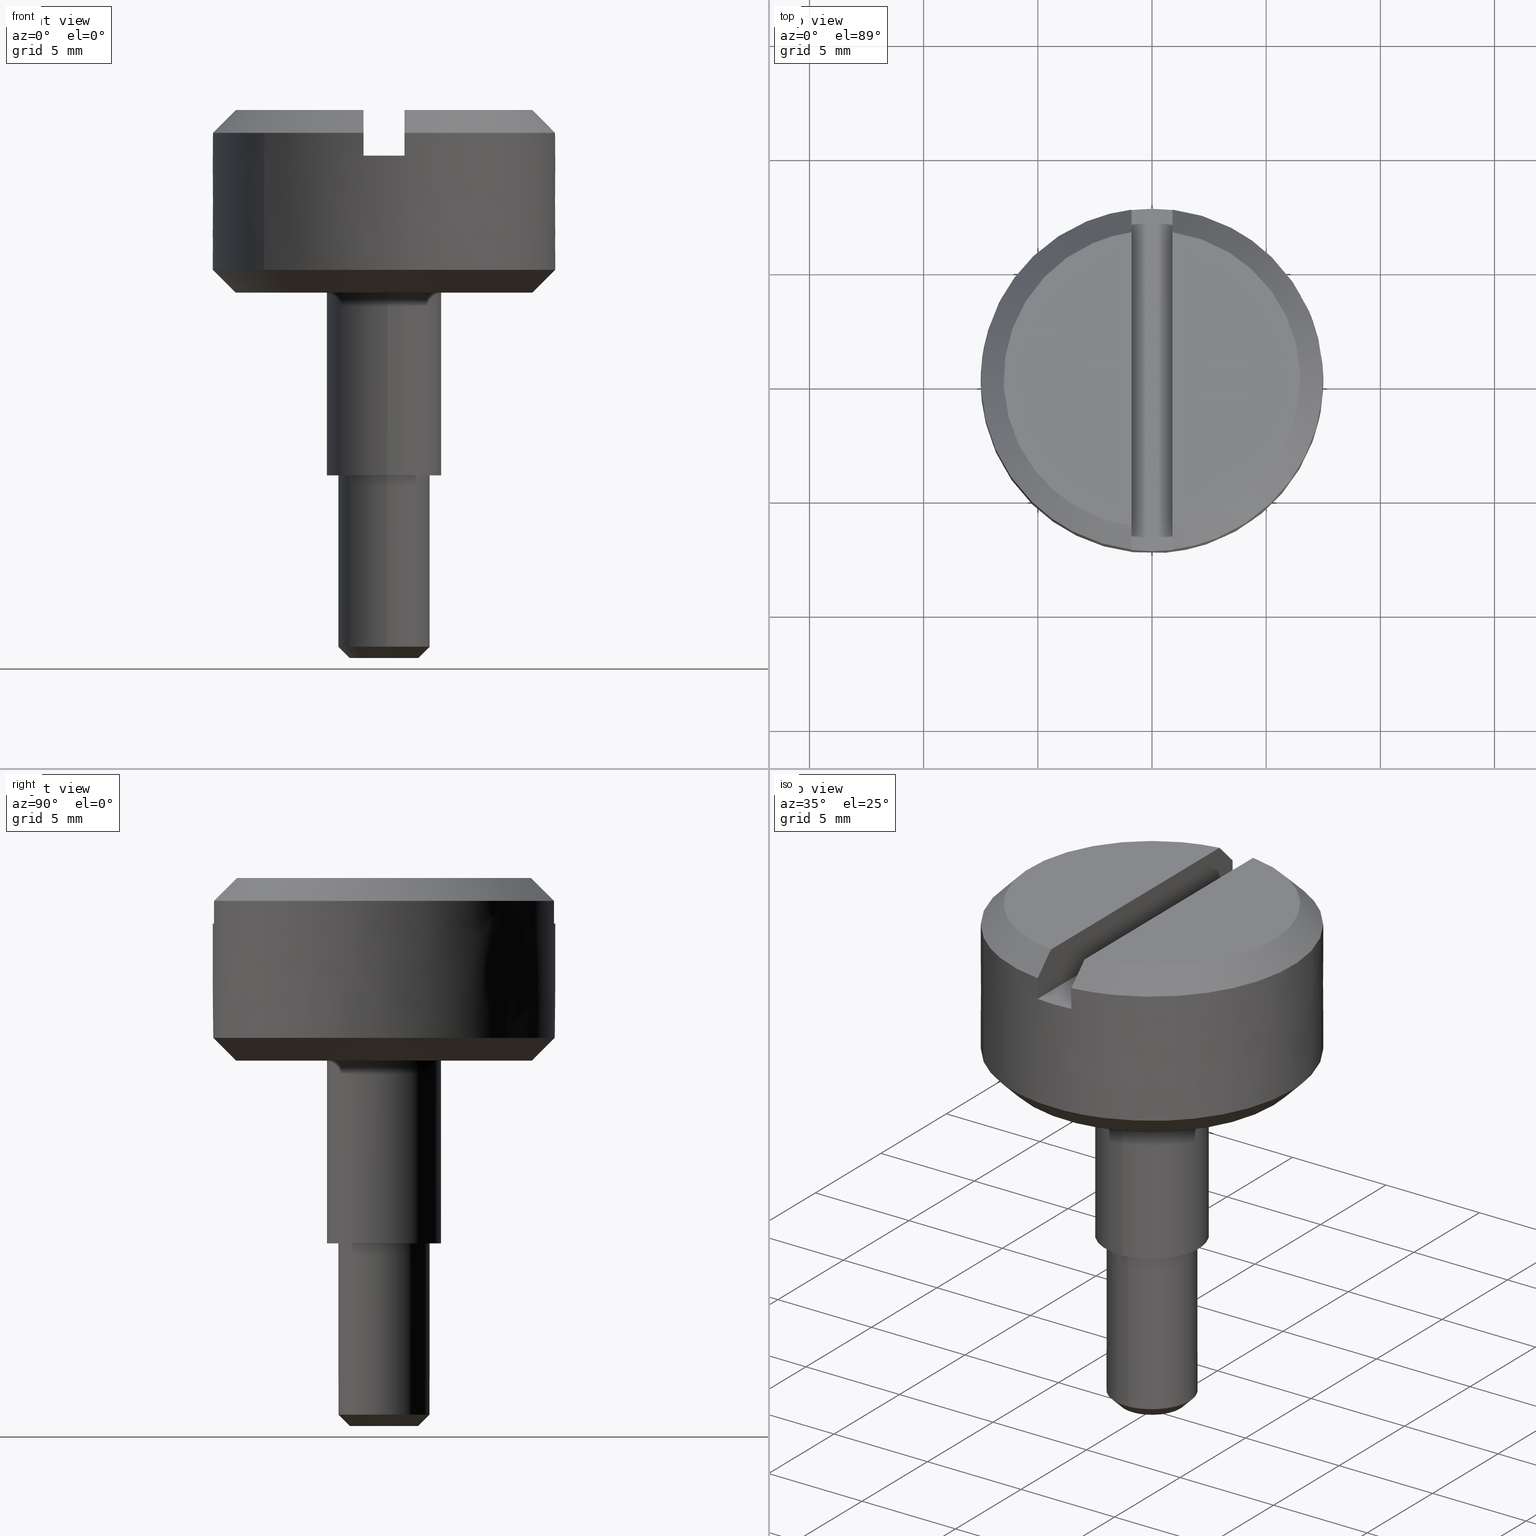
[diagram: canonical four-view strip — front | top / right | iso, engineering-drawing reading convention]
A machine part, canonical four-view strip (front | top / right | iso — engineering-drawing reading convention). The complete STEP part file that produces these views, byte-faithful:
ISO-10303-21;
HEADER;
/****************************************************************
 * Generated by software with PDE/Lib inside                    *
 * PDElib Version v5.1, created Sun 05/01/2005                  *
 * International Technegroup Inc. (www.iti-oh.com)              *
 ****************************************************************/
FILE_DESCRIPTION((''),'2;1');
FILE_NAME('','2009-09-16T09:00:57',(''),(''),'','CADfix','');
FILE_SCHEMA(('AUTOMOTIVE_DESIGN { 1 0 10303 214 1 1 1 1 }'));
ENDSEC;
DATA;
#5=CARTESIAN_POINT('',(1.649849994185451,-1.649392157252150,-16.0));
#6=CARTESIAN_POINT('',(-1.649850074651764,-1.649392157252150,-16.0));
#7=CARTESIAN_POINT('',(1.649849994185451,1.649392210896330,-16.0));
#8=CARTESIAN_POINT('',(-1.649850074651765,1.649392210896330,-16.0));
#9=B_SPLINE_SURFACE_WITH_KNOTS('',1,1,((#5,#7),(#6,#8)),.UNSPECIFIED.,.F.,.F.,.U.,(2,2),(2,2),(0.0,3.299700068837216),(0.0,3.298784368148479),.UNSPECIFIED.);
#10=CARTESIAN_POINT('',(-1.500000000000071,0.0,-16.0));
#11=VERTEX_POINT('',#10);
#12=CARTESIAN_POINT('',(-0.117688643725480,1.495376000606664,-15.999999999982609));
#13=VERTEX_POINT('',#12);
#14=CARTESIAN_POINT('',(-1.500000000000071,0.0,-16.0));
#15=CARTESIAN_POINT('',(-1.500000000000754,1.386585737372950,-15.999999999991308));
#16=CARTESIAN_POINT('',(-0.117688643725480,1.495376000606665,-15.999999999982613));
#24=(BOUNDED_CURVE()B_SPLINE_CURVE(2,(#14,#15,#16),.UNSPECIFIED.,.F.,.U.)B_SPLINE_CURVE_WITH_KNOTS((3,3),(0.0,0.236331300617598),.UNSPECIFIED.)CURVE()GEOMETRIC_REPRESENTATION_ITEM()RATIONAL_B_SPLINE_CURVE((1.0,0.723120658622968,0.969723356140159))REPRESENTATION_ITEM(''));
#25=EDGE_CURVE('',#11,#13,#24,.T.);
#26=ORIENTED_EDGE('',*,*,#25,.T.);
#27=CARTESIAN_POINT('',(1.500000000000029,0.0,-16.0));
#28=VERTEX_POINT('',#27);
#29=CARTESIAN_POINT('',(-0.117688643725480,1.495376000606665,-15.999999999982613));
#30=CARTESIAN_POINT('',(-0.058935160579336,1.500000000017072,-15.999999999982931));
#31=CARTESIAN_POINT('',(-1.334117E-012,1.500000000016731,-15.999999999983270));
#32=CARTESIAN_POINT('',(1.499999999999399,1.500000000008064,-15.999999999991969));
#33=CARTESIAN_POINT('',(1.500000000000029,0.0,-16.0));
#41=(BOUNDED_CURVE()B_SPLINE_CURVE(2,(#29,#30,#31,#32,#33),.UNSPECIFIED.,.F.,.U.)B_SPLINE_CURVE_WITH_KNOTS((3,2,3),(0.236331300617598,0.250000000000000,0.500000000000000),.UNSPECIFIED.)CURVE()GEOMETRIC_REPRESENTATION_ITEM()RATIONAL_B_SPLINE_CURVE((0.969723356140159,0.983986122563579,1.0,0.707106781186547,1.0))REPRESENTATION_ITEM(''));
#42=EDGE_CURVE('',#13,#28,#41,.T.);
#43=ORIENTED_EDGE('',*,*,#42,.T.);
#44=CARTESIAN_POINT('',(0.117688643725438,-1.495376000606664,-15.999999999982609));
#45=VERTEX_POINT('',#44);
#46=CARTESIAN_POINT('',(1.500000000000029,0.0,-16.0));
#47=CARTESIAN_POINT('',(1.500000000000712,-1.386585737372950,-15.999999999991299));
#48=CARTESIAN_POINT('',(0.117688643725438,-1.495376000606665,-15.999999999982611));
#56=(BOUNDED_CURVE()B_SPLINE_CURVE(2,(#46,#47,#48),.UNSPECIFIED.,.F.,.U.)B_SPLINE_CURVE_WITH_KNOTS((3,3),(0.500000000000000,0.736331300617598),.UNSPECIFIED.)CURVE()GEOMETRIC_REPRESENTATION_ITEM()RATIONAL_B_SPLINE_CURVE((1.0,0.723120658622968,0.969723356140159))REPRESENTATION_ITEM(''));
#57=EDGE_CURVE('',#28,#45,#56,.T.);
#58=ORIENTED_EDGE('',*,*,#57,.T.);
#59=CARTESIAN_POINT('',(0.117688643725438,-1.495376000606665,-15.999999999982611));
#60=CARTESIAN_POINT('',(0.058935160579294,-1.500000000017072,-15.999999999982929));
#61=CARTESIAN_POINT('',(1.291832E-012,-1.500000000016731,-15.999999999983270));
#62=CARTESIAN_POINT('',(-1.499999999999441,-1.500000000008064,-15.999999999991969));
#63=CARTESIAN_POINT('',(-1.500000000000071,0.0,-16.0));
#71=(BOUNDED_CURVE()B_SPLINE_CURVE(2,(#59,#60,#61,#62,#63),.UNSPECIFIED.,.F.,.U.)B_SPLINE_CURVE_WITH_KNOTS((3,2,3),(0.736331300617598,0.750000000000000,1.0),.UNSPECIFIED.)CURVE()GEOMETRIC_REPRESENTATION_ITEM()RATIONAL_B_SPLINE_CURVE((0.969723356140159,0.983986122563579,1.0,0.707106781186547,1.0))REPRESENTATION_ITEM(''));
#72=EDGE_CURVE('',#45,#11,#71,.T.);
#73=ORIENTED_EDGE('',*,*,#72,.T.);
#74=EDGE_LOOP('',(#26,#43,#58,#73));
#75=FACE_OUTER_BOUND('',#74,.T.);
#76=ADVANCED_FACE('',(#75),#9,.T.);
#77=CARTESIAN_POINT('',(-0.083050346608503,1.485563441212790,-16.012499999999999));
#78=CARTESIAN_POINT('',(-0.099799645413369,1.484245242808733,-16.012500000000010));
#79=CARTESIAN_POINT('',(-1.599622438823274,1.366206629032904,-16.012499999999996));
#80=CARTESIAN_POINT('',(-1.482914533928100,-0.116707904895174,-16.012499999999999));
#81=CARTESIAN_POINT('',(-1.366206629032925,-1.599622438823252,-16.012499999999996));
#82=CARTESIAN_POINT('',(0.127195234507890,-1.482089163187524,-16.012499999999996));
#83=CARTESIAN_POINT('',(0.137621301202690,-1.481268613943175,-16.012499999999999));
#84=CARTESIAN_POINT('',(-0.112379681198598,2.010192043036030,-15.487187499999999));
#85=CARTESIAN_POINT('',(-0.135044015988964,2.008408321203984,-15.487187500000008));
#86=CARTESIAN_POINT('',(-2.164531119424493,1.848684222185056,-15.487187499999992));
#87=CARTESIAN_POINT('',(-2.006607670804785,-0.157923448619708,-15.487187499999999));
#88=CARTESIAN_POINT('',(-1.848684222185077,-2.164531119424472,-15.487187499999992));
#89=CARTESIAN_POINT('',(0.172114391904484,-2.005490819346798,-15.487187499999992));
#90=CARTESIAN_POINT('',(0.186222437194655,-2.004380492102504,-15.487187499999997));
#98=(BOUNDED_SURFACE()B_SPLINE_SURFACE(2,1,((#77,#84),(#78,#85),(#79,#86),(#80,#87),(#81,#88),(#82,#89),(#83,#90)),.UNSPECIFIED.,.F.,.F.,.U.)B_SPLINE_SURFACE_WITH_KNOTS((3,1,2,1,3),(2,2),(0.0,0.054030798713152,3.388967742769621,6.723904686826089,6.757356949159307),(0.0,1.0),.UNSPECIFIED.)GEOMETRIC_REPRESENTATION_ITEM()RATIONAL_B_SPLINE_SURFACE(((1.009490586967985,1.009490586967985),(1.004745293483992,1.004745293483992),(0.707106781186548,0.707106781186548),(1.0,1.0),(0.707106781186548,0.707106781186548),(1.002937968829915,1.002937968829915),(1.005875937659829,1.005875937659829)))REPRESENTATION_ITEM('')SURFACE());
#99=CARTESIAN_POINT('',(-2.000000000000071,0.0,-15.500000000000000));
#100=VERTEX_POINT('',#99);
#101=CARTESIAN_POINT('',(-0.139507635304126,1.995052132157174,-15.499999999989200));
#102=VERTEX_POINT('',#101);
#103=CARTESIAN_POINT('',(-2.000000000000071,0.0,-15.500000000000000));
#104=CARTESIAN_POINT('',(-1.991294721883276,1.849389715588892,-15.499999999994600));
#105=CARTESIAN_POINT('',(-0.139507635304126,1.995052132157174,-15.499999999989203));
#113=(BOUNDED_CURVE()B_SPLINE_CURVE(2,(#103,#104,#105),.UNSPECIFIED.,.F.,.U.)B_SPLINE_CURVE_WITH_KNOTS((3,3),(0.0,0.236331300625721),.UNSPECIFIED.)CURVE()GEOMETRIC_REPRESENTATION_ITEM()RATIONAL_B_SPLINE_CURVE((1.0,0.723120658613452,0.969723356157110))REPRESENTATION_ITEM(''));
#114=EDGE_CURVE('',#100,#102,#113,.T.);
#115=ORIENTED_EDGE('',*,*,#114,.T.);
#116=CARTESIAN_POINT('',(-0.117688643725480,1.495376000606664,-15.999999999982609));
#117=CARTESIAN_POINT('',(-0.139507635304126,1.995052132157174,-15.499999999989200));
#118=QUASI_UNIFORM_CURVE('',1,(#116,#117),.UNSPECIFIED.,.F.,.U.);
#119=EDGE_CURVE('',#13,#102,#118,.T.);
#120=ORIENTED_EDGE('',*,*,#119,.F.);
#121=ORIENTED_EDGE('',*,*,#25,.F.);
#122=ORIENTED_EDGE('',*,*,#72,.F.);
#123=CARTESIAN_POINT('',(0.139507635304083,-1.995052132157174,-15.499999999989200));
#124=VERTEX_POINT('',#123);
#125=CARTESIAN_POINT('',(0.117688643725438,-1.495376000606664,-15.999999999982609));
#126=CARTESIAN_POINT('',(0.139507635304083,-1.995052132157174,-15.499999999989200));
#127=QUASI_UNIFORM_CURVE('',1,(#125,#126),.UNSPECIFIED.,.F.,.U.);
#128=EDGE_CURVE('',#45,#124,#127,.T.);
#129=ORIENTED_EDGE('',*,*,#128,.T.);
#130=CARTESIAN_POINT('',(0.139507635304083,-1.995052132157174,-15.499999999989203));
#131=CARTESIAN_POINT('',(0.069836313272955,-1.999925268562704,-15.499999999989381));
#132=CARTESIAN_POINT('',(-0.000005132977601,-1.999926594999492,-15.499999999989569));
#133=CARTESIAN_POINT('',(-2.000002476865100,-1.999964579179300,-15.499999999994987));
#134=CARTESIAN_POINT('',(-2.000000000000071,0.0,-15.500000000000000));
#142=(BOUNDED_CURVE()B_SPLINE_CURVE(2,(#130,#131,#132,#133,#134),.UNSPECIFIED.,.F.,.U.)B_SPLINE_CURVE_WITH_KNOTS((3,2,3),(0.737829682993436,0.750000000000000,1.0),.UNSPECIFIED.)CURVE()GEOMETRIC_REPRESENTATION_ITEM()RATIONAL_B_SPLINE_CURVE((0.972871408701556,0.985741586711870,1.0,0.707106781186547,1.0))REPRESENTATION_ITEM(''));
#143=EDGE_CURVE('',#124,#100,#142,.T.);
#144=ORIENTED_EDGE('',*,*,#143,.T.);
#145=EDGE_LOOP('',(#115,#120,#121,#122,#129,#144));
#146=FACE_OUTER_BOUND('',#145,.T.);
#147=ADVANCED_FACE('',(#146),#98,.T.);
#148=CARTESIAN_POINT('',(0.083050346608460,-1.485563441212790,-16.012499999999999));
#149=CARTESIAN_POINT('',(0.099799645413326,-1.484245242808733,-16.012500000000010));
#150=CARTESIAN_POINT('',(1.599622438823231,-1.366206629032904,-16.012499999999996));
#151=CARTESIAN_POINT('',(1.482914533928057,0.116707904895174,-16.012499999999999));
#152=CARTESIAN_POINT('',(1.366206629032883,1.599622438823252,-16.012499999999996));
#153=CARTESIAN_POINT('',(-0.127195234507932,1.482089163187524,-16.012499999999996));
#154=CARTESIAN_POINT('',(-0.137621301202733,1.481268613943175,-16.012499999999999));
#155=CARTESIAN_POINT('',(0.112379681198555,-2.010192043036030,-15.487187499999999));
#156=CARTESIAN_POINT('',(0.135044015988921,-2.008408321203984,-15.487187500000008));
#157=CARTESIAN_POINT('',(2.164531119424451,-1.848684222185056,-15.487187499999992));
#158=CARTESIAN_POINT('',(2.006607670804742,0.157923448619708,-15.487187499999999));
#159=CARTESIAN_POINT('',(1.848684222185034,2.164531119424472,-15.487187499999992));
#160=CARTESIAN_POINT('',(-0.172114391904527,2.005490819346798,-15.487187499999992));
#161=CARTESIAN_POINT('',(-0.186222437194697,2.004380492102504,-15.487187499999997));
#169=(BOUNDED_SURFACE()B_SPLINE_SURFACE(2,1,((#148,#155),(#149,#156),(#150,#157),(#151,#158),(#152,#159),(#153,#160),(#154,#161)),.UNSPECIFIED.,.F.,.F.,.U.)B_SPLINE_SURFACE_WITH_KNOTS((3,1,2,1,3),(2,2),(0.0,0.054030798713152,3.388967742769621,6.723904686826089,6.757356949159307),(0.0,1.0),.UNSPECIFIED.)GEOMETRIC_REPRESENTATION_ITEM()RATIONAL_B_SPLINE_SURFACE(((1.009490586967985,1.009490586967985),(1.004745293483992,1.004745293483992),(0.707106781186548,0.707106781186548),(1.0,1.0),(0.707106781186548,0.707106781186548),(1.002937968829915,1.002937968829915),(1.005875937659829,1.005875937659829)))REPRESENTATION_ITEM('')SURFACE());
#170=CARTESIAN_POINT('',(2.000000000000029,0.0,-15.500000000000000));
#171=VERTEX_POINT('',#170);
#172=CARTESIAN_POINT('',(-0.139507635304126,1.995052132157174,-15.499999999989205));
#173=CARTESIAN_POINT('',(-0.069836313272998,1.999925268562705,-15.499999999989381));
#174=CARTESIAN_POINT('',(0.000005132977560,1.999926594999493,-15.499999999989569));
#175=CARTESIAN_POINT('',(2.000002476865058,1.999964579179300,-15.499999999994987));
#176=CARTESIAN_POINT('',(2.000000000000029,0.0,-15.500000000000000));
#184=(BOUNDED_CURVE()B_SPLINE_CURVE(2,(#172,#173,#174,#175,#176),.UNSPECIFIED.,.F.,.U.)B_SPLINE_CURVE_WITH_KNOTS((3,2,3),(0.237829682993436,0.250000000000000,0.500000000000000),.UNSPECIFIED.)CURVE()GEOMETRIC_REPRESENTATION_ITEM()RATIONAL_B_SPLINE_CURVE((0.972871408701556,0.985741586711870,1.0,0.707106781186547,1.0))REPRESENTATION_ITEM(''));
#185=EDGE_CURVE('',#102,#171,#184,.T.);
#186=ORIENTED_EDGE('',*,*,#185,.T.);
#187=CARTESIAN_POINT('',(2.000000000000029,0.0,-15.500000000000000));
#188=CARTESIAN_POINT('',(1.991294721883233,-1.849389715588893,-15.499999999994602));
#189=CARTESIAN_POINT('',(0.139507635304083,-1.995052132157174,-15.499999999989203));
#197=(BOUNDED_CURVE()B_SPLINE_CURVE(2,(#187,#188,#189),.UNSPECIFIED.,.F.,.U.)B_SPLINE_CURVE_WITH_KNOTS((3,3),(0.500000000000000,0.736331300625721),.UNSPECIFIED.)CURVE()GEOMETRIC_REPRESENTATION_ITEM()RATIONAL_B_SPLINE_CURVE((1.0,0.723120658613452,0.969723356157110))REPRESENTATION_ITEM(''));
#198=EDGE_CURVE('',#171,#124,#197,.T.);
#199=ORIENTED_EDGE('',*,*,#198,.T.);
#200=ORIENTED_EDGE('',*,*,#128,.F.);
#201=ORIENTED_EDGE('',*,*,#57,.F.);
#202=ORIENTED_EDGE('',*,*,#42,.F.);
#203=ORIENTED_EDGE('',*,*,#119,.T.);
#204=EDGE_LOOP('',(#186,#199,#200,#201,#202,#203));
#205=FACE_OUTER_BOUND('',#204,.T.);
#206=ADVANCED_FACE('',(#205),#169,.T.);
#207=CARTESIAN_POINT('',(-0.167405537429218,1.993498412815539,-7.812500000000790));
#208=CARTESIAN_POINT('',(-0.144858299919038,1.994877460938816,-7.812500000000785));
#209=CARTESIAN_POINT('',(1.874172517774046,2.118366675913501,-7.812500000000787));
#210=CARTESIAN_POINT('',(1.996269596843762,0.122097079069717,-7.812500000000788));
#211=CARTESIAN_POINT('',(2.118366675913480,-1.874172517774067,-7.812500000000787));
#212=CARTESIAN_POINT('',(0.107980552190204,-1.997133000615157,-7.812500000000785));
#213=CARTESIAN_POINT('',(0.093946480996417,-1.997991361180749,-7.812500000000789));
#214=CARTESIAN_POINT('',(-0.167405537429218,1.993498412815539,-15.692187499999987));
#215=CARTESIAN_POINT('',(-0.144858299919038,1.994877460938816,-15.692187499999976));
#216=CARTESIAN_POINT('',(1.874172517774046,2.118366675913501,-15.692187499999976));
#217=CARTESIAN_POINT('',(1.996269596843762,0.122097079069717,-15.692187499999980));
#218=CARTESIAN_POINT('',(2.118366675913480,-1.874172517774067,-15.692187499999976));
#219=CARTESIAN_POINT('',(0.107980552190204,-1.997133000615157,-15.692187499999982));
#220=CARTESIAN_POINT('',(0.093946480996417,-1.997991361180749,-15.692187499999987));
#228=(BOUNDED_SURFACE()B_SPLINE_SURFACE(2,1,((#207,#214),(#208,#215),(#209,#216),(#210,#217),(#211,#218),(#212,#219),(#213,#220)),.UNSPECIFIED.,.F.,.F.,.U.)B_SPLINE_SURFACE_WITH_KNOTS((3,1,2,1,3),(2,2),(0.0,0.053686069553977,3.367394568538820,6.681103067523663,6.714339310210055),(0.0,7.879687499999196),.UNSPECIFIED.)GEOMETRIC_REPRESENTATION_ITEM()RATIONAL_B_SPLINE_SURFACE(((1.009490445959217,1.009490445959217),(1.004745222979609,1.004745222979609),(0.707106781186548,0.707106781186548),(1.0,1.0),(0.707106781186548,0.707106781186548),(1.002937696573089,1.002937696573089),(1.005875393146177,1.005875393146177)))REPRESENTATION_ITEM('')SURFACE());
#229=CARTESIAN_POINT('',(-0.122099686778643,1.996269437346055,-8.000000000000771));
#230=VERTEX_POINT('',#229);
#231=CARTESIAN_POINT('',(-0.122099686778643,1.996269437346055,-8.000000000000771));
#232=CARTESIAN_POINT('',(-0.139507635304126,1.995052132157174,-15.499999999989200));
#233=QUASI_UNIFORM_CURVE('',1,(#231,#232),.UNSPECIFIED.,.F.,.U.);
#234=EDGE_CURVE('',#230,#102,#233,.T.);
#235=ORIENTED_EDGE('',*,*,#234,.F.);
#236=CARTESIAN_POINT('',(2.000000000000029,0.0,-8.000000000000771));
#237=VERTEX_POINT('',#236);
#238=CARTESIAN_POINT('',(-0.122099686778643,1.996269437346055,-8.000000000000771));
#239=CARTESIAN_POINT('',(-0.061106834107562,1.999999999998371,-8.000000000000771));
#240=CARTESIAN_POINT('',(7.956011E-014,1.999999999998397,-8.000000000000771));
#241=CARTESIAN_POINT('',(2.000000000000078,1.999999999999249,-8.000000000000771));
#242=CARTESIAN_POINT('',(2.000000000000029,0.0,-8.000000000000771));
#250=(BOUNDED_CURVE()B_SPLINE_CURVE(2,(#238,#239,#240,#241,#242),.UNSPECIFIED.,.F.,.U.)B_SPLINE_CURVE_WITH_KNOTS((3,2,3),(0.239332736845696,0.250000000000000,0.500000000000000),.UNSPECIFIED.)CURVE()GEOMETRIC_REPRESENTATION_ITEM()RATIONAL_B_SPLINE_CURVE((0.976071558606561,0.987502523835223,1.0,0.707106781186547,1.0))REPRESENTATION_ITEM(''));
#251=EDGE_CURVE('',#230,#237,#250,.T.);
#252=ORIENTED_EDGE('',*,*,#251,.T.);
#253=CARTESIAN_POINT('',(0.122099686778600,-1.996269437346055,-8.000000000000771));
#254=VERTEX_POINT('',#253);
#255=CARTESIAN_POINT('',(2.000000000000029,0.0,-8.000000000000771));
#256=CARTESIAN_POINT('',(1.999999999999976,-1.881409671547641,-8.000000000000773));
#257=CARTESIAN_POINT('',(0.122099686778600,-1.996269437346055,-8.000000000000771));
#265=(BOUNDED_CURVE()B_SPLINE_CURVE(2,(#255,#256,#257),.UNSPECIFIED.,.F.,.U.)B_SPLINE_CURVE_WITH_KNOTS((3,3),(0.500000000000000,0.739332736845696),.UNSPECIFIED.)CURVE()GEOMETRIC_REPRESENTATION_ITEM()RATIONAL_B_SPLINE_CURVE((1.0,0.719604257351324,0.976071558606561))REPRESENTATION_ITEM(''));
#266=EDGE_CURVE('',#237,#254,#265,.T.);
#267=ORIENTED_EDGE('',*,*,#266,.T.);
#268=CARTESIAN_POINT('',(0.122099686778600,-1.996269437346055,-8.000000000000771));
#269=CARTESIAN_POINT('',(0.139507635304083,-1.995052132157174,-15.499999999989200));
#270=QUASI_UNIFORM_CURVE('',1,(#268,#269),.UNSPECIFIED.,.F.,.U.);
#271=EDGE_CURVE('',#254,#124,#270,.T.);
#272=ORIENTED_EDGE('',*,*,#271,.T.);
#273=ORIENTED_EDGE('',*,*,#198,.F.);
#274=ORIENTED_EDGE('',*,*,#185,.F.);
#275=EDGE_LOOP('',(#235,#252,#267,#272,#273,#274));
#276=FACE_OUTER_BOUND('',#275,.T.);
#277=ADVANCED_FACE('',(#276),#228,.T.);
#278=CARTESIAN_POINT('',(0.167405537429175,-1.993498412815539,-7.812500000000790));
#279=CARTESIAN_POINT('',(0.144858299918995,-1.994877460938816,-7.812500000000785));
#280=CARTESIAN_POINT('',(-1.874172517774088,-2.118366675913501,-7.812500000000787));
#281=CARTESIAN_POINT('',(-1.996269596843805,-0.122097079069717,-7.812500000000788));
#282=CARTESIAN_POINT('',(-2.118366675913522,1.874172517774067,-7.812500000000787));
#283=CARTESIAN_POINT('',(-0.107980552190247,1.997133000615157,-7.812500000000784));
#284=CARTESIAN_POINT('',(-0.093946480996461,1.997991361180748,-7.812500000000788));
#285=CARTESIAN_POINT('',(0.167405537429175,-1.993498412815539,-15.692187499999987));
#286=CARTESIAN_POINT('',(0.144858299918995,-1.994877460938816,-15.692187499999976));
#287=CARTESIAN_POINT('',(-1.874172517774088,-2.118366675913501,-15.692187499999976));
#288=CARTESIAN_POINT('',(-1.996269596843805,-0.122097079069717,-15.692187499999980));
#289=CARTESIAN_POINT('',(-2.118366675913522,1.874172517774067,-15.692187499999976));
#290=CARTESIAN_POINT('',(-0.107980552190247,1.997133000615157,-15.692187499999971));
#291=CARTESIAN_POINT('',(-0.093946480996461,1.997991361180748,-15.692187499999987));
#299=(BOUNDED_SURFACE()B_SPLINE_SURFACE(2,1,((#278,#285),(#279,#286),(#280,#287),(#281,#288),(#282,#289),(#283,#290),(#284,#291)),.UNSPECIFIED.,.F.,.F.,.U.)B_SPLINE_SURFACE_WITH_KNOTS((3,1,2,1,3),(2,2),(0.0,0.053686069553978,3.367394568538821,6.681103067523664,6.714339310210055),(0.0,7.879687499999196),.UNSPECIFIED.)GEOMETRIC_REPRESENTATION_ITEM()RATIONAL_B_SPLINE_SURFACE(((1.009490445959217,1.009490445959217),(1.004745222979609,1.004745222979609),(0.707106781186548,0.707106781186548),(1.0,1.0),(0.707106781186548,0.707106781186548),(1.002937696573089,1.002937696573089),(1.005875393146177,1.005875393146177)))REPRESENTATION_ITEM('')SURFACE());
#300=ORIENTED_EDGE('',*,*,#234,.T.);
#301=ORIENTED_EDGE('',*,*,#114,.F.);
#302=ORIENTED_EDGE('',*,*,#143,.F.);
#303=ORIENTED_EDGE('',*,*,#271,.F.);
#304=CARTESIAN_POINT('',(-2.000000000000071,0.0,-8.000000000000771));
#305=VERTEX_POINT('',#304);
#306=CARTESIAN_POINT('',(0.122099686778600,-1.996269437346055,-8.000000000000771));
#307=CARTESIAN_POINT('',(0.061106834107519,-1.999999999998371,-8.000000000000773));
#308=CARTESIAN_POINT('',(-1.229064E-013,-1.999999999998397,-8.000000000000773));
#309=CARTESIAN_POINT('',(-2.000000000000120,-1.999999999999249,-8.000000000000773));
#310=CARTESIAN_POINT('',(-2.000000000000071,0.0,-8.000000000000771));
#318=(BOUNDED_CURVE()B_SPLINE_CURVE(2,(#306,#307,#308,#309,#310),.UNSPECIFIED.,.F.,.U.)B_SPLINE_CURVE_WITH_KNOTS((3,2,3),(0.739332736845696,0.750000000000000,1.0),.UNSPECIFIED.)CURVE()GEOMETRIC_REPRESENTATION_ITEM()RATIONAL_B_SPLINE_CURVE((0.976071558606561,0.987502523835223,1.0,0.707106781186547,1.0))REPRESENTATION_ITEM(''));
#319=EDGE_CURVE('',#254,#305,#318,.T.);
#320=ORIENTED_EDGE('',*,*,#319,.T.);
#321=CARTESIAN_POINT('',(-2.000000000000071,0.0,-8.000000000000771));
#322=CARTESIAN_POINT('',(-2.000000000000020,1.881409671547641,-8.000000000000773));
#323=CARTESIAN_POINT('',(-0.122099686778643,1.996269437346055,-8.000000000000771));
#331=(BOUNDED_CURVE()B_SPLINE_CURVE(2,(#321,#322,#323),.UNSPECIFIED.,.F.,.U.)B_SPLINE_CURVE_WITH_KNOTS((3,3),(0.0,0.239332736845696),.UNSPECIFIED.)CURVE()GEOMETRIC_REPRESENTATION_ITEM()RATIONAL_B_SPLINE_CURVE((1.0,0.719604257351324,0.976071558606561))REPRESENTATION_ITEM(''));
#332=EDGE_CURVE('',#305,#230,#331,.T.);
#333=ORIENTED_EDGE('',*,*,#332,.T.);
#334=EDGE_LOOP('',(#300,#301,#302,#303,#320,#333));
#335=FACE_OUTER_BOUND('',#334,.T.);
#336=ADVANCED_FACE('',(#335),#299,.T.);
#337=CARTESIAN_POINT('',(2.749749990309063,-2.749688468272983,-8.000000000000851));
#338=CARTESIAN_POINT('',(-2.749750124419557,-2.749688468272983,-8.000000000000851));
#339=CARTESIAN_POINT('',(2.749749990309063,2.749688378866015,-8.000000000000851));
#340=CARTESIAN_POINT('',(-2.749750124419557,2.749688378866015,-8.000000000000851));
#341=B_SPLINE_SURFACE_WITH_KNOTS('',1,1,((#337,#339),(#338,#340)),.UNSPECIFIED.,.F.,.F.,.U.,(2,2),(2,2),(0.0,5.499500114728620),(0.0,5.499376847138999),.UNSPECIFIED.);
#342=CARTESIAN_POINT('',(-2.500000000000071,0.0,-8.000000000000940));
#343=VERTEX_POINT('',#342);
#344=CARTESIAN_POINT('',(-0.152621348860034,2.495336996053319,-8.000000000000940));
#345=VERTEX_POINT('',#344);
#346=CARTESIAN_POINT('',(-2.500000000000071,0.0,-8.000000000000940));
#347=CARTESIAN_POINT('',(-2.500000000000072,2.351765167242692,-8.000000000000940));
#348=CARTESIAN_POINT('',(-0.152621348860034,2.495336996053318,-8.000000000000940));
#356=(BOUNDED_CURVE()B_SPLINE_CURVE(2,(#346,#347,#348),.UNSPECIFIED.,.F.,.U.)B_SPLINE_CURVE_WITH_KNOTS((3,3),(0.0,0.239332962240387),.UNSPECIFIED.)CURVE()GEOMETRIC_REPRESENTATION_ITEM()RATIONAL_B_SPLINE_CURVE((1.0,0.719603993285018,0.976072041669813))REPRESENTATION_ITEM(''));
#357=EDGE_CURVE('',#343,#345,#356,.T.);
#358=ORIENTED_EDGE('',*,*,#357,.T.);
#359=CARTESIAN_POINT('',(2.500000000000029,0.0,-8.000000000000940));
#360=VERTEX_POINT('',#359);
#361=CARTESIAN_POINT('',(-0.152621348860034,2.495336996053318,-8.000000000000940));
#362=CARTESIAN_POINT('',(-0.076381908257961,2.500000000000049,-8.000000000000940));
#363=CARTESIAN_POINT('',(-2.131628E-014,2.500000000000050,-8.000000000000940));
#364=CARTESIAN_POINT('',(2.500000000000028,2.500000000000050,-8.000000000000940));
#365=CARTESIAN_POINT('',(2.500000000000029,0.0,-8.000000000000940));
#373=(BOUNDED_CURVE()B_SPLINE_CURVE(2,(#361,#362,#363,#364,#365),.UNSPECIFIED.,.F.,.U.)B_SPLINE_CURVE_WITH_KNOTS((3,2,3),(0.239332962240387,0.250000000000000,0.500000000000000),.UNSPECIFIED.)CURVE()GEOMETRIC_REPRESENTATION_ITEM()RATIONAL_B_SPLINE_CURVE((0.976072041669813,0.987502787901529,1.0,0.707106781186548,1.0))REPRESENTATION_ITEM(''));
#374=EDGE_CURVE('',#345,#360,#373,.T.);
#375=ORIENTED_EDGE('',*,*,#374,.T.);
#376=CARTESIAN_POINT('',(0.152621348859991,-2.495336996053319,-8.000000000000940));
#377=VERTEX_POINT('',#376);
#378=CARTESIAN_POINT('',(2.500000000000029,0.0,-8.000000000000940));
#379=CARTESIAN_POINT('',(2.500000000000029,-2.351765167242694,-8.000000000000940));
#380=CARTESIAN_POINT('',(0.152621348859990,-2.495336996053319,-8.000000000000940));
#388=(BOUNDED_CURVE()B_SPLINE_CURVE(2,(#378,#379,#380),.UNSPECIFIED.,.F.,.U.)B_SPLINE_CURVE_WITH_KNOTS((3,3),(0.500000000000000,0.739332962240387),.UNSPECIFIED.)CURVE()GEOMETRIC_REPRESENTATION_ITEM()RATIONAL_B_SPLINE_CURVE((1.0,0.719603993285018,0.976072041669813))REPRESENTATION_ITEM(''));
#389=EDGE_CURVE('',#360,#377,#388,.T.);
#390=ORIENTED_EDGE('',*,*,#389,.T.);
#391=CARTESIAN_POINT('',(0.152621348859990,-2.495336996053319,-8.000000000000940));
#392=CARTESIAN_POINT('',(0.076381908257918,-2.500000000000050,-8.000000000000940));
#393=CARTESIAN_POINT('',(-2.131628E-014,-2.500000000000050,-8.000000000000940));
#394=CARTESIAN_POINT('',(-2.500000000000071,-2.500000000000050,-8.000000000000940));
#395=CARTESIAN_POINT('',(-2.500000000000071,0.0,-8.000000000000940));
#403=(BOUNDED_CURVE()B_SPLINE_CURVE(2,(#391,#392,#393,#394,#395),.UNSPECIFIED.,.F.,.U.)B_SPLINE_CURVE_WITH_KNOTS((3,2,3),(0.739332962240387,0.750000000000000,1.0),.UNSPECIFIED.)CURVE()GEOMETRIC_REPRESENTATION_ITEM()RATIONAL_B_SPLINE_CURVE((0.976072041669813,0.987502787901529,1.0,0.707106781186548,1.0))REPRESENTATION_ITEM(''));
#404=EDGE_CURVE('',#377,#343,#403,.T.);
#405=ORIENTED_EDGE('',*,*,#404,.T.);
#406=EDGE_LOOP('',(#358,#375,#390,#405));
#407=FACE_OUTER_BOUND('',#406,.T.);
#408=ORIENTED_EDGE('',*,*,#266,.F.);
#409=ORIENTED_EDGE('',*,*,#251,.F.);
#410=ORIENTED_EDGE('',*,*,#332,.F.);
#411=ORIENTED_EDGE('',*,*,#319,.F.);
#412=EDGE_LOOP('',(#408,#409,#410,#411));
#413=FACE_BOUND('',#412,.T.);
#414=ADVANCED_FACE('',(#407,#413),#341,.T.);
#415=CARTESIAN_POINT('',(-0.152621348837167,2.495336996054717,0.200000000000024));
#416=CARTESIAN_POINT('',(2.342715647217549,2.647958344891863,0.200000000000024));
#417=CARTESIAN_POINT('',(2.495336996054696,0.152621348837146,0.200000000000024));
#418=CARTESIAN_POINT('',(2.647958344891841,-2.342715647217571,0.200000000000024));
#419=CARTESIAN_POINT('',(0.152621348837124,-2.495336996054717,0.200000000000024));
#420=CARTESIAN_POINT('',(-0.152621348837167,2.495336996054717,-8.205000000000963));
#421=CARTESIAN_POINT('',(2.342715647217549,2.647958344891863,-8.205000000000963));
#422=CARTESIAN_POINT('',(2.495336996054696,0.152621348837146,-8.205000000000963));
#423=CARTESIAN_POINT('',(2.647958344891841,-2.342715647217571,-8.205000000000963));
#424=CARTESIAN_POINT('',(0.152621348837124,-2.495336996054717,-8.205000000000963));
#432=(BOUNDED_SURFACE()B_SPLINE_SURFACE(2,1,((#415,#420),(#416,#421),(#417,#422),(#418,#423),(#419,#424)),.UNSPECIFIED.,.F.,.F.,.U.)B_SPLINE_SURFACE_WITH_KNOTS((3,2,3),(2,2),(0.0,4.142135623731033,8.284271247462065),(0.0,8.405000000000987),.UNSPECIFIED.)GEOMETRIC_REPRESENTATION_ITEM()RATIONAL_B_SPLINE_SURFACE(((1.0,1.0),(0.707106781186548,0.707106781186548),(1.0,1.0),(0.707106781186548,0.707106781186548),(1.0,1.0)))REPRESENTATION_ITEM('')SURFACE());
#433=CARTESIAN_POINT('',(-0.152621348860034,2.495336996053319,-8.420209E-013));
#434=VERTEX_POINT('',#433);
#435=CARTESIAN_POINT('',(2.500000000000029,0.0,0.0));
#436=VERTEX_POINT('',#435);
#437=CARTESIAN_POINT('',(-0.152621348860034,2.495336996053319,-8.420209E-013));
#438=CARTESIAN_POINT('',(-0.076381908257961,2.500000000000051,-8.299206E-013));
#439=CARTESIAN_POINT('',(-2.126242E-014,2.500000000000050,-8.170575E-013));
#440=CARTESIAN_POINT('',(2.500000000000028,2.500000000000050,-3.960471E-013));
#441=CARTESIAN_POINT('',(2.500000000000029,0.0,0.0));
#449=(BOUNDED_CURVE()B_SPLINE_CURVE(2,(#437,#438,#439,#440,#441),.UNSPECIFIED.,.F.,.U.)B_SPLINE_CURVE_WITH_KNOTS((3,2,3),(0.239332962240387,0.250000000000000,0.500000000000000),.UNSPECIFIED.)CURVE()GEOMETRIC_REPRESENTATION_ITEM()RATIONAL_B_SPLINE_CURVE((0.976072041669813,0.987502787901529,1.0,0.707106781186548,1.0))REPRESENTATION_ITEM(''));
#450=EDGE_CURVE('',#434,#436,#449,.T.);
#451=ORIENTED_EDGE('',*,*,#450,.T.);
#452=CARTESIAN_POINT('',(0.152621348859991,-2.495336996053318,-8.403058E-013));
#453=VERTEX_POINT('',#452);
#454=CARTESIAN_POINT('',(2.500000000000029,0.0,0.0));
#455=CARTESIAN_POINT('',(2.500000000000029,-2.351765167242692,-7.920681E-013));
#456=CARTESIAN_POINT('',(0.152621348859992,-2.495336996053319,-8.404227E-013));
#464=(BOUNDED_CURVE()B_SPLINE_CURVE(2,(#454,#455,#456),.UNSPECIFIED.,.F.,.U.)B_SPLINE_CURVE_WITH_KNOTS((3,3),(0.500000000000000,0.739332962240387),.UNSPECIFIED.)CURVE()GEOMETRIC_REPRESENTATION_ITEM()RATIONAL_B_SPLINE_CURVE((1.0,0.719603993285018,0.976072041669813))REPRESENTATION_ITEM(''));
#465=EDGE_CURVE('',#436,#453,#464,.T.);
#466=ORIENTED_EDGE('',*,*,#465,.T.);
#467=CARTESIAN_POINT('',(0.152621348859991,-2.495336996053318,-8.403058E-013));
#468=CARTESIAN_POINT('',(0.152621348859991,-2.495336996053319,-8.000000000000940));
#469=QUASI_UNIFORM_CURVE('',1,(#467,#468),.UNSPECIFIED.,.F.,.U.);
#470=EDGE_CURVE('',#453,#377,#469,.T.);
#471=ORIENTED_EDGE('',*,*,#470,.T.);
#472=ORIENTED_EDGE('',*,*,#389,.F.);
#473=ORIENTED_EDGE('',*,*,#374,.F.);
#474=CARTESIAN_POINT('',(-0.152621348860034,2.495336996053319,-8.420209E-013));
#475=CARTESIAN_POINT('',(-0.152621348860034,2.495336996053319,-8.000000000000940));
#476=QUASI_UNIFORM_CURVE('',1,(#474,#475),.UNSPECIFIED.,.F.,.U.);
#477=EDGE_CURVE('',#434,#345,#476,.T.);
#478=ORIENTED_EDGE('',*,*,#477,.F.);
#479=EDGE_LOOP('',(#451,#466,#471,#472,#473,#478));
#480=FACE_OUTER_BOUND('',#479,.T.);
#481=ADVANCED_FACE('',(#480),#432,.T.);
#482=CARTESIAN_POINT('',(0.152621348837124,-2.495336996054717,0.200000000000024));
#483=CARTESIAN_POINT('',(-2.342715647217592,-2.647958344891863,0.200000000000024));
#484=CARTESIAN_POINT('',(-2.495336996054738,-0.152621348837146,0.200000000000024));
#485=CARTESIAN_POINT('',(-2.647958344891884,2.342715647217571,0.200000000000024));
#486=CARTESIAN_POINT('',(-0.152621348837167,2.495336996054717,0.200000000000024));
#487=CARTESIAN_POINT('',(0.152621348837124,-2.495336996054717,-8.205000000000963));
#488=CARTESIAN_POINT('',(-2.342715647217592,-2.647958344891863,-8.205000000000963));
#489=CARTESIAN_POINT('',(-2.495336996054738,-0.152621348837146,-8.205000000000963));
#490=CARTESIAN_POINT('',(-2.647958344891884,2.342715647217571,-8.205000000000963));
#491=CARTESIAN_POINT('',(-0.152621348837167,2.495336996054717,-8.205000000000963));
#499=(BOUNDED_SURFACE()B_SPLINE_SURFACE(2,1,((#482,#487),(#483,#488),(#484,#489),(#485,#490),(#486,#491)),.UNSPECIFIED.,.F.,.F.,.U.)B_SPLINE_SURFACE_WITH_KNOTS((3,2,3),(2,2),(0.0,4.142135623731033,8.284271247462065),(0.0,8.405000000000987),.UNSPECIFIED.)GEOMETRIC_REPRESENTATION_ITEM()RATIONAL_B_SPLINE_SURFACE(((1.0,1.0),(0.707106781186548,0.707106781186548),(1.0,1.0),(0.707106781186548,0.707106781186548),(1.0,1.0)))REPRESENTATION_ITEM('')SURFACE());
#500=CARTESIAN_POINT('',(-2.500000000000071,0.0,-8.419931E-013));
#501=VERTEX_POINT('',#500);
#502=CARTESIAN_POINT('',(-2.500000000000071,0.0,-8.419931E-013));
#503=CARTESIAN_POINT('',(-2.500000000000072,2.351765167242692,-8.419931E-013));
#504=CARTESIAN_POINT('',(-0.152621348860034,2.495336996053318,-8.419931E-013));
#512=(BOUNDED_CURVE()B_SPLINE_CURVE(2,(#502,#503,#504),.UNSPECIFIED.,.F.,.U.)B_SPLINE_CURVE_WITH_KNOTS((3,3),(0.0,0.239332962240387),.UNSPECIFIED.)CURVE()GEOMETRIC_REPRESENTATION_ITEM()RATIONAL_B_SPLINE_CURVE((1.0,0.719603993285018,0.976072041669813))REPRESENTATION_ITEM(''));
#513=EDGE_CURVE('',#501,#434,#512,.T.);
#514=ORIENTED_EDGE('',*,*,#513,.T.);
#515=ORIENTED_EDGE('',*,*,#477,.T.);
#516=ORIENTED_EDGE('',*,*,#357,.F.);
#517=ORIENTED_EDGE('',*,*,#404,.F.);
#518=ORIENTED_EDGE('',*,*,#470,.F.);
#519=CARTESIAN_POINT('',(0.152621348859992,-2.495336996053319,-8.404227E-013));
#520=CARTESIAN_POINT('',(0.076381908257919,-2.500000000000049,-8.419931E-013));
#521=CARTESIAN_POINT('',(-2.131628E-014,-2.500000000000050,-8.419931E-013));
#522=CARTESIAN_POINT('',(-2.500000000000071,-2.500000000000050,-8.419931E-013));
#523=CARTESIAN_POINT('',(-2.500000000000071,0.0,-8.419931E-013));
#531=(BOUNDED_CURVE()B_SPLINE_CURVE(2,(#519,#520,#521,#522,#523),.UNSPECIFIED.,.F.,.U.)B_SPLINE_CURVE_WITH_KNOTS((3,2,3),(0.739332962240387,0.750000000000000,1.0),.UNSPECIFIED.)CURVE()GEOMETRIC_REPRESENTATION_ITEM()RATIONAL_B_SPLINE_CURVE((0.976072041669813,0.987502787901529,1.0,0.707106781186548,1.0))REPRESENTATION_ITEM(''));
#532=EDGE_CURVE('',#453,#501,#531,.T.);
#533=ORIENTED_EDGE('',*,*,#532,.T.);
#534=EDGE_LOOP('',(#514,#515,#516,#517,#518,#533));
#535=FACE_OUTER_BOUND('',#534,.T.);
#536=ADVANCED_FACE('',(#535),#499,.T.);
#537=CARTESIAN_POINT('',(7.149349974803454,-7.147365892724535,-1.515232E-012));
#538=CARTESIAN_POINT('',(-7.149350323490671,-7.147365892724535,-1.515232E-012));
#539=CARTESIAN_POINT('',(7.149349974803454,7.147366241411707,-1.515232E-012));
#540=CARTESIAN_POINT('',(-7.149350323490671,7.147366241411707,-1.515232E-012));
#541=B_SPLINE_SURFACE_WITH_KNOTS('',1,1,((#537,#539),(#538,#540)),.UNSPECIFIED.,.F.,.F.,.U.,(2,2),(2,2),(0.0,14.298700298294129),(0.0,14.294732134136240),.UNSPECIFIED.);
#542=CARTESIAN_POINT('',(-6.500000000000021,0.0,-2.188472E-012));
#543=VERTEX_POINT('',#542);
#544=CARTESIAN_POINT('',(-0.509984122261655,6.479962669266916,1.796362E-012));
#545=VERTEX_POINT('',#544);
#546=CARTESIAN_POINT('',(-6.500000000000021,0.0,-2.188472E-012));
#547=CARTESIAN_POINT('',(-6.500000000000178,6.008538195752123,-1.960550E-013));
#548=CARTESIAN_POINT('',(-0.509984122261655,6.479962669266916,1.796362E-012));
#556=(BOUNDED_CURVE()B_SPLINE_CURVE(2,(#546,#547,#548),.UNSPECIFIED.,.F.,.U.)B_SPLINE_CURVE_WITH_KNOTS((3,3),(0.0,0.236331300631965),.UNSPECIFIED.)CURVE()GEOMETRIC_REPRESENTATION_ITEM()RATIONAL_B_SPLINE_CURVE((1.0,0.723120658606137,0.969723356170141))REPRESENTATION_ITEM(''));
#557=EDGE_CURVE('',#543,#545,#556,.T.);
#558=ORIENTED_EDGE('',*,*,#557,.T.);
#559=CARTESIAN_POINT('',(6.499999999999978,0.0,0.0));
#560=VERTEX_POINT('',#559);
#561=CARTESIAN_POINT('',(-0.509984122261655,6.479962669266916,1.796362E-012));
#562=CARTESIAN_POINT('',(-0.255385695565416,6.500000000003901,1.763740E-012));
#563=CARTESIAN_POINT('',(-3.223495E-013,6.500000000003821,1.728451E-012));
#564=CARTESIAN_POINT('',(6.499999999999832,6.500000000001836,8.302698E-013));
#565=CARTESIAN_POINT('',(6.499999999999978,0.0,0.0));
#573=(BOUNDED_CURVE()B_SPLINE_CURVE(2,(#561,#562,#563,#564,#565),.UNSPECIFIED.,.F.,.U.)B_SPLINE_CURVE_WITH_KNOTS((3,2,3),(0.236331300631965,0.250000000000000,0.500000000000000),.UNSPECIFIED.)CURVE()GEOMETRIC_REPRESENTATION_ITEM()RATIONAL_B_SPLINE_CURVE((0.969723356170141,0.983986122580411,1.0,0.707106781186547,1.0))REPRESENTATION_ITEM(''));
#574=EDGE_CURVE('',#545,#560,#573,.T.);
#575=ORIENTED_EDGE('',*,*,#574,.T.);
#576=CARTESIAN_POINT('',(0.509984122261611,-6.479962669266918,1.801544E-012));
#577=VERTEX_POINT('',#576);
#578=CARTESIAN_POINT('',(6.499999999999978,0.0,0.0));
#579=CARTESIAN_POINT('',(6.500000000000133,-6.008538195752124,-3.136764E-014));
#580=CARTESIAN_POINT('',(0.509984122261611,-6.479962669266918,1.801544E-012));
#588=(BOUNDED_CURVE()B_SPLINE_CURVE(2,(#578,#579,#580),.UNSPECIFIED.,.F.,.U.)B_SPLINE_CURVE_WITH_KNOTS((3,3),(0.500000000000000,0.736331300631965),.UNSPECIFIED.)CURVE()GEOMETRIC_REPRESENTATION_ITEM()RATIONAL_B_SPLINE_CURVE((1.0,0.723120658606137,0.969723356170141))REPRESENTATION_ITEM(''));
#589=EDGE_CURVE('',#560,#577,#588,.T.);
#590=ORIENTED_EDGE('',*,*,#589,.T.);
#591=CARTESIAN_POINT('',(0.509984122261611,-6.479962669266918,1.801544E-012));
#592=CARTESIAN_POINT('',(0.255385695565373,-6.500000000003900,1.722463E-012));
#593=CARTESIAN_POINT('',(2.808920E-013,-6.500000000003823,1.644211E-012));
#594=CARTESIAN_POINT('',(-6.499999999999876,-6.500000000001837,-3.474234E-013));
#595=CARTESIAN_POINT('',(-6.500000000000021,0.0,-2.188472E-012));
#603=(BOUNDED_CURVE()B_SPLINE_CURVE(2,(#591,#592,#593,#594,#595),.UNSPECIFIED.,.F.,.U.)B_SPLINE_CURVE_WITH_KNOTS((3,2,3),(0.736331300631965,0.750000000000000,1.0),.UNSPECIFIED.)CURVE()GEOMETRIC_REPRESENTATION_ITEM()RATIONAL_B_SPLINE_CURVE((0.969723356170141,0.983986122580411,1.0,0.707106781186547,1.0))REPRESENTATION_ITEM(''));
#604=EDGE_CURVE('',#577,#543,#603,.T.);
#605=ORIENTED_EDGE('',*,*,#604,.T.);
#606=EDGE_LOOP('',(#558,#575,#590,#605));
#607=FACE_OUTER_BOUND('',#606,.T.);
#608=ORIENTED_EDGE('',*,*,#465,.F.);
#609=ORIENTED_EDGE('',*,*,#450,.F.);
#610=ORIENTED_EDGE('',*,*,#513,.F.);
#611=ORIENTED_EDGE('',*,*,#532,.F.);
#612=EDGE_LOOP('',(#608,#609,#610,#611));
#613=FACE_BOUND('',#612,.T.);
#614=ADVANCED_FACE('',(#607,#613),#541,.T.);
#615=CARTESIAN_POINT('',(-0.900000000000027,-8.189639997075233,5.900100003876676));
#616=CARTESIAN_POINT('',(-0.900000000000027,-8.189639997075233,8.099900049768126));
#617=CARTESIAN_POINT('',(-0.900000000000027,8.189640396499295,5.900100003876676));
#618=CARTESIAN_POINT('',(-0.900000000000027,8.189640396499295,8.099900049768126));
#619=B_SPLINE_SURFACE_WITH_KNOTS('',1,1,((#615,#617),(#616,#618)),.UNSPECIFIED.,.F.,.F.,.U.,(2,2),(2,2),(0.0,2.199800045891450),(0.0,16.379280393574529),.UNSPECIFIED.);
#620=CARTESIAN_POINT('',(-0.900000000000027,7.445804187597109,6.000000000000290));
#621=VERTEX_POINT('',#620);
#622=CARTESIAN_POINT('',(-0.900000000000027,7.445804187594560,6.999999999997391));
#623=VERTEX_POINT('',#622);
#624=CARTESIAN_POINT('',(-0.900000000000027,7.445804187597109,6.000000000000290));
#625=CARTESIAN_POINT('',(-0.900000000000027,7.445804187594560,6.999999999997391));
#626=QUASI_UNIFORM_CURVE('',1,(#624,#625),.UNSPECIFIED.,.F.,.U.);
#627=EDGE_CURVE('',#621,#623,#626,.T.);
#628=ORIENTED_EDGE('',*,*,#627,.T.);
#629=CARTESIAN_POINT('',(-0.900000000000027,6.437390775771970,7.999999999997700));
#630=VERTEX_POINT('',#629);
#631=CARTESIAN_POINT('',(-0.900000000000027,7.445804187594560,6.999999999997391));
#632=CARTESIAN_POINT('',(-0.900000000000027,7.109850583502577,7.333519141446305));
#633=CARTESIAN_POINT('',(-0.900000000000027,6.773750285482231,7.666890308168059));
#634=CARTESIAN_POINT('',(-0.900000000000027,6.437390775771970,7.999999999997700));
#635=B_SPLINE_CURVE_WITH_KNOTS('',3,(#631,#632,#633,#634),.UNSPECIFIED.,.F.,.U.,(4,4),(0.0,0.070808166643140),.UNSPECIFIED.);
#636=EDGE_CURVE('',#623,#630,#635,.T.);
#637=ORIENTED_EDGE('',*,*,#636,.T.);
#638=CARTESIAN_POINT('',(-0.900000000000027,-6.437390775772660,8.000000000000330));
#639=VERTEX_POINT('',#638);
#640=CARTESIAN_POINT('',(-0.900000000000027,6.437390775771970,7.999999999997700));
#641=CARTESIAN_POINT('',(-0.900000000000027,-6.437390775772660,8.000000000000330));
#642=QUASI_UNIFORM_CURVE('',1,(#640,#641),.UNSPECIFIED.,.F.,.U.);
#643=EDGE_CURVE('',#630,#639,#642,.T.);
#644=ORIENTED_EDGE('',*,*,#643,.T.);
#645=CARTESIAN_POINT('',(-0.900000000000027,-7.445804187594570,6.999999999997380));
#646=VERTEX_POINT('',#645);
#647=CARTESIAN_POINT('',(-0.900000000000027,-6.437390775772660,8.000000000000330));
#648=CARTESIAN_POINT('',(-0.900000000000027,-6.773750161947216,7.666890425772100));
#649=CARTESIAN_POINT('',(-0.900000000000027,-7.109850490492800,7.333519248876280));
#650=CARTESIAN_POINT('',(-0.900000000000027,-7.445804187594570,6.999999999997380));
#651=B_SPLINE_CURVE_WITH_KNOTS('',3,(#647,#648,#649,#650),.UNSPECIFIED.,.F.,.U.,(4,4),(0.929162089459579,1.0),.UNSPECIFIED.);
#652=EDGE_CURVE('',#639,#646,#651,.T.);
#653=ORIENTED_EDGE('',*,*,#652,.T.);
#654=CARTESIAN_POINT('',(-0.900000000000027,-7.445804187597109,6.000000000000290));
#655=VERTEX_POINT('',#654);
#656=CARTESIAN_POINT('',(-0.900000000000027,-7.445804187594570,6.999999999997380));
#657=CARTESIAN_POINT('',(-0.900000000000027,-7.445804187597109,6.000000000000290));
#658=QUASI_UNIFORM_CURVE('',1,(#656,#657),.UNSPECIFIED.,.F.,.U.);
#659=EDGE_CURVE('',#646,#655,#658,.T.);
#660=ORIENTED_EDGE('',*,*,#659,.T.);
#661=CARTESIAN_POINT('',(-0.900000000000027,7.445804187597109,6.000000000000290));
#662=CARTESIAN_POINT('',(-0.900000000000027,-7.445804187597109,6.000000000000290));
#663=QUASI_UNIFORM_CURVE('',1,(#661,#662),.UNSPECIFIED.,.F.,.U.);
#664=EDGE_CURVE('',#621,#655,#663,.T.);
#665=ORIENTED_EDGE('',*,*,#664,.F.);
#666=EDGE_LOOP('',(#628,#637,#644,#653,#660,#665));
#667=FACE_OUTER_BOUND('',#666,.T.);
#668=ADVANCED_FACE('',(#667),#619,.F.);
#669=CARTESIAN_POINT('',(0.989909996511235,-8.249249970927794,5.999999999999693));
#670=CARTESIAN_POINT('',(-0.989910044791040,-8.249249970927794,6.000000000000318));
#671=CARTESIAN_POINT('',(0.989909996511235,8.249250373259148,5.999999999999693));
#672=CARTESIAN_POINT('',(-0.989910044791040,8.249250373259148,6.000000000000318));
#673=B_SPLINE_SURFACE_WITH_KNOTS('',1,1,((#669,#671),(#670,#672)),.UNSPECIFIED.,.F.,.F.,.U.,(2,2),(2,2),(0.0,1.979820041302275),(0.0,16.498500344186940),.UNSPECIFIED.);
#674=CARTESIAN_POINT('',(0.899999999999984,-7.445804187597109,5.999999999999720));
#675=VERTEX_POINT('',#674);
#676=CARTESIAN_POINT('',(-0.900000000000027,-7.445804187597109,6.000000000000290));
#677=CARTESIAN_POINT('',(1.330810E-013,-7.554590287739182,6.000000000000003));
#678=CARTESIAN_POINT('',(0.899999999999984,-7.445804187597109,5.999999999999720));
#686=(BOUNDED_CURVE()B_SPLINE_CURVE(2,(#676,#677,#678),.UNSPECIFIED.,.F.,.U.)CURVE()GEOMETRIC_REPRESENTATION_ITEM()QUASI_UNIFORM_CURVE()RATIONAL_B_SPLINE_CURVE((1.0,0.992773891679273,1.0))REPRESENTATION_ITEM(''));
#687=EDGE_CURVE('',#655,#675,#686,.T.);
#688=ORIENTED_EDGE('',*,*,#687,.T.);
#689=CARTESIAN_POINT('',(0.899999999999984,7.445804187597109,5.999999999999720));
#690=VERTEX_POINT('',#689);
#691=CARTESIAN_POINT('',(0.899999999999984,7.445804187597109,5.999999999999720));
#692=CARTESIAN_POINT('',(0.899999999999984,-7.445804187597109,5.999999999999720));
#693=QUASI_UNIFORM_CURVE('',1,(#691,#692),.UNSPECIFIED.,.F.,.U.);
#694=EDGE_CURVE('',#690,#675,#693,.T.);
#695=ORIENTED_EDGE('',*,*,#694,.F.);
#696=CARTESIAN_POINT('',(0.899999999999984,7.445804187597109,5.999999999999720));
#697=CARTESIAN_POINT('',(-1.745366E-013,7.554590287739182,6.000000000000003));
#698=CARTESIAN_POINT('',(-0.900000000000027,7.445804187597109,6.000000000000290));
#706=(BOUNDED_CURVE()B_SPLINE_CURVE(2,(#696,#697,#698),.UNSPECIFIED.,.F.,.U.)CURVE()GEOMETRIC_REPRESENTATION_ITEM()QUASI_UNIFORM_CURVE()RATIONAL_B_SPLINE_CURVE((1.0,0.992773891679273,1.0))REPRESENTATION_ITEM(''));
#707=EDGE_CURVE('',#690,#621,#706,.T.);
#708=ORIENTED_EDGE('',*,*,#707,.T.);
#709=ORIENTED_EDGE('',*,*,#664,.T.);
#710=EDGE_LOOP('',(#688,#695,#708,#709));
#711=FACE_OUTER_BOUND('',#710,.T.);
#712=ADVANCED_FACE('',(#711),#673,.F.);
#713=CARTESIAN_POINT('',(-6.779719989145642,-7.080486089318489,7.999999999998859));
#714=CARTESIAN_POINT('',(-0.620279860650233,-7.080486089318489,7.999999999998859));
#715=CARTESIAN_POINT('',(-6.779719989145642,7.080486434646351,7.999999999998859));
#716=CARTESIAN_POINT('',(-0.620279860650233,7.080486434646351,7.999999999998859));
#717=B_SPLINE_SURFACE_WITH_KNOTS('',1,1,((#713,#715),(#714,#716)),.UNSPECIFIED.,.F.,.F.,.U.,(2,2),(2,2),(0.0,6.159440128495409),(0.0,14.160972523964841),.UNSPECIFIED.);
#718=ORIENTED_EDGE('',*,*,#643,.F.);
#719=CARTESIAN_POINT('',(-0.900000000000027,-6.437390775772660,8.000000000000330));
#720=CARTESIAN_POINT('',(-1.164047159276238,-6.400482808678095,8.000000000000201));
#721=CARTESIAN_POINT('',(-1.687587838249358,-6.294108253978422,7.999999999999965));
#722=CARTESIAN_POINT('',(-2.435870798614686,-6.043238327347011,7.999999999999608));
#723=CARTESIAN_POINT('',(-3.214326217083384,-5.673205633604002,7.999999999999251));
#724=CARTESIAN_POINT('',(-4.027366416843102,-5.139638750141832,7.999999999998845));
#725=CARTESIAN_POINT('',(-4.724338078900701,-4.495818033796238,7.999999999998596));
#726=CARTESIAN_POINT('',(-5.208135261631244,-3.903781118246386,7.999999999998288));
#727=CARTESIAN_POINT('',(-5.582366590741799,-3.351684227360256,7.999999999998127));
#728=CARTESIAN_POINT('',(-5.974684702140021,-2.625036571034016,7.999999999997995));
#729=CARTESIAN_POINT('',(-6.300390684119401,-1.707749896026585,7.999999999997671));
#730=CARTESIAN_POINT('',(-6.462877620411041,-0.823562934463634,7.999999999997905));
#731=CARTESIAN_POINT('',(-6.517480665100312,0.023957214605705,7.999999999997415));
#732=CARTESIAN_POINT('',(-6.470390909309578,0.788331480987488,7.999999999997747));
#733=CARTESIAN_POINT('',(-6.314401125327738,1.598575614218152,7.999999999997815));
#734=CARTESIAN_POINT('',(-6.050783176171725,2.444827095877732,7.999999999997491));
#735=CARTESIAN_POINT('',(-5.681092151179661,3.198833017271690,7.999999999998009));
#736=CARTESIAN_POINT('',(-5.190481524745288,3.935830146604961,7.999999999996987));
#737=CARTESIAN_POINT('',(-4.752563333565737,4.456637287679189,7.999999999998058));
#738=CARTESIAN_POINT('',(-4.142491201614249,5.029747307688385,7.999999999997533));
#739=CARTESIAN_POINT('',(-3.506005130055947,5.497656543903021,7.999999999997868));
#740=CARTESIAN_POINT('',(-2.833558538158969,5.862271089679829,7.999999999997383));
#741=CARTESIAN_POINT('',(-1.994418853604011,6.213329914923008,7.999999999998912));
#742=CARTESIAN_POINT('',(-1.368100583673093,6.372036070872326,7.999999999995317));
#743=CARTESIAN_POINT('',(-0.900000000000027,6.437390775771970,7.999999999997700));
#744=B_SPLINE_CURVE_WITH_KNOTS('',3,(#719,#720,#721,#722,#723,#724,#725,#726,#727,#728,#729,#730,#731,#732,#733,#734,#735,#736,#737,#738,#739,#740,#741,#742,#743),.UNSPECIFIED.,.F.,.U.,(4,1,1,1,1,1,1,1,1,1,1,1,1,1,1,1,1,1,1,1,1,1,4),(0.000000024161348,0.799842489403279,1.599687473984336,2.363178146622577,3.381163256419885,4.508217718454189,5.198995217117382,5.671630920660629,6.507837288633635,7.671241821314473,8.580161070661593,9.198231879725142,10.216189347488079,10.870618237372669,11.670465744644030,12.870229296968560,13.379223595747691,14.324497476765179,14.906206454662611,15.887834280108610,16.687676822934609,17.196679448044861,18.614574840735450),.UNSPECIFIED.);
#745=EDGE_CURVE('',#639,#630,#744,.T.);
#746=ORIENTED_EDGE('',*,*,#745,.F.);
#747=EDGE_LOOP('',(#718,#746));
#748=FACE_OUTER_BOUND('',#747,.T.);
#749=ADVANCED_FACE('',(#748),#717,.T.);
#750=CARTESIAN_POINT('',(-0.520177643334407,6.454071600108987,8.025000000000404));
#751=CARTESIAN_POINT('',(-0.604580984883470,7.501300785420066,6.974374999997305));
#752=CARTESIAN_POINT('',(-6.591561953800680,5.964737335155623,8.025000000000404));
#753=CARTESIAN_POINT('',(-7.661100143412580,6.932567785004386,6.974374999997305));
#754=CARTESIAN_POINT('',(-6.473789540999350,-0.125195761933080,8.025000000000404));
#755=CARTESIAN_POINT('',(-7.524218133514752,-0.145509861914766,6.974374999997305));
#756=CARTESIAN_POINT('',(-6.356017128198021,-6.215128859021784,8.025000000000404));
#757=CARTESIAN_POINT('',(-7.387336123616922,-7.223587508833918,6.974374999997305));
#758=CARTESIAN_POINT('',(-0.270253150133713,-6.469357636952925,8.025000000000404));
#759=CARTESIAN_POINT('',(-0.314104071502093,-7.519067114535698,6.974374999997305));
#767=(BOUNDED_SURFACE()B_SPLINE_SURFACE(1,2,((#750,#752,#754,#756,#758),(#751,#753,#755,#757,#759)),.UNSPECIFIED.,.F.,.F.,.U.)B_SPLINE_SURFACE_WITH_KNOTS((2,2),(3,2,3),(0.0,1.0),(0.0,11.933619185760140,23.867238371520280),.UNSPECIFIED.)GEOMETRIC_REPRESENTATION_ITEM()RATIONAL_B_SPLINE_SURFACE(((1.0,0.728370969882400,1.0,0.728370969882400,1.0),(1.0,0.728370969882400,1.0,0.728370969882400,1.0)))REPRESENTATION_ITEM('')SURFACE());
#768=ORIENTED_EDGE('',*,*,#636,.F.);
#769=CARTESIAN_POINT('',(-5.246736126367376,-5.359268608706941,6.999999999997387));
#770=VERTEX_POINT('',#769);
#771=CARTESIAN_POINT('',(-5.246736126367390,-5.359268608706954,6.999999999997386));
#772=CARTESIAN_POINT('',(-7.500000000000022,-3.153318164495249,6.999999999997390));
#773=CARTESIAN_POINT('',(-7.500000000000021,0.0,6.999999999997391));
#774=CARTESIAN_POINT('',(-7.500000000000022,6.648039453209386,6.999999999997391));
#775=CARTESIAN_POINT('',(-0.900000000000023,7.445804187594514,6.999999999997391));
#783=(BOUNDED_CURVE()B_SPLINE_CURVE(2,(#771,#772,#773,#774,#775),.UNSPECIFIED.,.F.,.U.)B_SPLINE_CURVE_WITH_KNOTS((3,2,3),(0.226679136802261,0.500000000000000,1.0),.UNSPECIFIED.)CURVE()GEOMETRIC_REPRESENTATION_ITEM()RATIONAL_B_SPLINE_CURVE((0.875260723575286,0.862427484301822,1.0,0.748331477354788,1.0))REPRESENTATION_ITEM(''));
#784=EDGE_CURVE('',#770,#623,#783,.T.);
#785=ORIENTED_EDGE('',*,*,#784,.F.);
#786=CARTESIAN_POINT('',(-0.900000000000027,-7.445804187594570,6.999999999997380));
#787=CARTESIAN_POINT('',(-3.427509727349847,-7.140295380580146,6.999999999997383));
#788=CARTESIAN_POINT('',(-5.246736126367390,-5.359268608706954,6.999999999997386));
#796=(BOUNDED_CURVE()B_SPLINE_CURVE(2,(#786,#787,#788),.UNSPECIFIED.,.F.,.U.)B_SPLINE_CURVE_WITH_KNOTS((3,3),(0.0,0.226679136802261),.UNSPECIFIED.)CURVE()GEOMETRIC_REPRESENTATION_ITEM()RATIONAL_B_SPLINE_CURVE((1.0,0.885903993052966,0.875260723575286))REPRESENTATION_ITEM(''));
#797=EDGE_CURVE('',#646,#770,#796,.T.);
#798=ORIENTED_EDGE('',*,*,#797,.F.);
#799=ORIENTED_EDGE('',*,*,#652,.F.);
#800=ORIENTED_EDGE('',*,*,#745,.T.);
#801=EDGE_LOOP('',(#768,#785,#798,#799,#800));
#802=FACE_OUTER_BOUND('',#801,.T.);
#803=ADVANCED_FACE('',(#802),#767,.T.);
#804=CARTESIAN_POINT('',(-0.508022644837821,6.455039735922002,-0.025000000002170));
#805=CARTESIAN_POINT('',(-6.963062380759823,5.947017091084201,-0.025000000002170));
#806=CARTESIAN_POINT('',(-6.455039735922023,-0.508022644837800,-0.025000000002170));
#807=CARTESIAN_POINT('',(-5.947017091084223,-6.963062380759801,-0.025000000002170));
#808=CARTESIAN_POINT('',(0.508022644837779,-6.455039735922002,-0.025000000002170));
#809=CARTESIAN_POINT('',(-0.590453732286889,7.502426009675369,1.025624999997053));
#810=CARTESIAN_POINT('',(-8.092879741962257,6.911972277388501,1.025624999997053));
#811=CARTESIAN_POINT('',(-7.502426009675390,-0.590453732286868,1.025624999997053));
#812=CARTESIAN_POINT('',(-6.911972277388522,-8.092879741962236,1.025624999997053));
#813=CARTESIAN_POINT('',(0.590453732286846,-7.502426009675369,1.025624999997053));
#821=(BOUNDED_SURFACE()B_SPLINE_SURFACE(2,1,((#804,#809),(#805,#810),(#806,#811),(#807,#812),(#808,#813)),.UNSPECIFIED.,.F.,.F.,.U.)B_SPLINE_SURFACE_WITH_KNOTS((3,2,3),(2,2),(0.0,12.468863761336090,24.937727522672180),(0.0,1.0),.UNSPECIFIED.)GEOMETRIC_REPRESENTATION_ITEM()RATIONAL_B_SPLINE_SURFACE(((1.0,1.0),(0.707106781186548,0.707106781186548),(1.0,1.0),(0.707106781186548,0.707106781186548),(1.0,1.0)))REPRESENTATION_ITEM('')SURFACE());
#822=CARTESIAN_POINT('',(-7.500000000000021,0.0,0.999999999997072));
#823=VERTEX_POINT('',#822);
#824=CARTESIAN_POINT('',(-0.588443217979856,7.476880002999542,0.999999999999799));
#825=VERTEX_POINT('',#824);
#826=CARTESIAN_POINT('',(-7.500000000000021,0.0,0.999999999997072));
#827=CARTESIAN_POINT('',(-7.500000000000129,6.932928687418583,0.999999999998435));
#828=CARTESIAN_POINT('',(-0.588443217979856,7.476880002999542,0.999999999999799));
#836=(BOUNDED_CURVE()B_SPLINE_CURVE(2,(#826,#827,#828),.UNSPECIFIED.,.F.,.U.)B_SPLINE_CURVE_WITH_KNOTS((3,3),(0.0,0.236331300632290),.UNSPECIFIED.)CURVE()GEOMETRIC_REPRESENTATION_ITEM()RATIONAL_B_SPLINE_CURVE((1.0,0.723120658605755,0.969723356170821))REPRESENTATION_ITEM(''));
#837=EDGE_CURVE('',#823,#825,#836,.T.);
#838=ORIENTED_EDGE('',*,*,#837,.T.);
#839=CARTESIAN_POINT('',(-0.509984122261655,6.479962669266916,1.796362E-012));
#840=CARTESIAN_POINT('',(-0.588443217979856,7.476880002999542,0.999999999999799));
#841=QUASI_UNIFORM_CURVE('',1,(#839,#840),.UNSPECIFIED.,.F.,.U.);
#842=EDGE_CURVE('',#545,#825,#841,.T.);
#843=ORIENTED_EDGE('',*,*,#842,.F.);
#844=ORIENTED_EDGE('',*,*,#557,.F.);
#845=ORIENTED_EDGE('',*,*,#604,.F.);
#846=CARTESIAN_POINT('',(0.588443217979813,-7.476880002999541,0.999999999999799));
#847=VERTEX_POINT('',#846);
#848=CARTESIAN_POINT('',(0.509984122261611,-6.479962669266918,1.801544E-012));
#849=CARTESIAN_POINT('',(0.588443217979813,-7.476880002999541,0.999999999999799));
#850=QUASI_UNIFORM_CURVE('',1,(#848,#849),.UNSPECIFIED.,.F.,.U.);
#851=EDGE_CURVE('',#577,#847,#850,.T.);
#852=ORIENTED_EDGE('',*,*,#851,.T.);
#853=CARTESIAN_POINT('',(-5.246736314149771,-5.359268424867546,0.999999999997070));
#854=VERTEX_POINT('',#853);
#855=CARTESIAN_POINT('',(0.588443217979813,-7.476880002999541,0.999999999999799));
#856=CARTESIAN_POINT('',(0.294675802568145,-7.500000000002600,0.999999999999681));
#857=CARTESIAN_POINT('',(1.725384E-013,-7.500000000002478,0.999999999999559));
#858=CARTESIAN_POINT('',(-3.060090283209675,-7.500000000001217,0.999999999998295));
#859=CARTESIAN_POINT('',(-5.246736314149771,-5.359268424867546,0.999999999997070));
#867=(BOUNDED_CURVE()B_SPLINE_CURVE(2,(#855,#856,#857,#858,#859),.UNSPECIFIED.,.F.,.U.)B_SPLINE_CURVE_WITH_KNOTS((3,2,3),(0.736331300632290,0.750000000000000,0.873399085536409),.UNSPECIFIED.)CURVE()GEOMETRIC_REPRESENTATION_ITEM()RATIONAL_B_SPLINE_CURVE((0.969723356170821,0.983986122580792,1.0,0.855428978554418,0.853577411840432))REPRESENTATION_ITEM(''));
#868=EDGE_CURVE('',#847,#854,#867,.T.);
#869=ORIENTED_EDGE('',*,*,#868,.T.);
#870=CARTESIAN_POINT('',(-5.246736314149776,-5.359268424867546,0.999999999997072));
#871=CARTESIAN_POINT('',(-7.500000000000022,-3.153318009872685,0.999999999997072));
#872=CARTESIAN_POINT('',(-7.500000000000021,0.0,0.999999999997072));
#880=(BOUNDED_CURVE()B_SPLINE_CURVE(2,(#870,#871,#872),.UNSPECIFIED.,.F.,.U.)B_SPLINE_CURVE_WITH_KNOTS((3,3),(0.873399085536409,1.0),.UNSPECIFIED.)CURVE()GEOMETRIC_REPRESENTATION_ITEM()RATIONAL_B_SPLINE_CURVE((0.853577411840432,0.851677802632129,1.0))REPRESENTATION_ITEM(''));
#881=EDGE_CURVE('',#854,#823,#880,.T.);
#882=ORIENTED_EDGE('',*,*,#881,.T.);
#883=EDGE_LOOP('',(#838,#843,#844,#845,#852,#869,#882));
#884=FACE_OUTER_BOUND('',#883,.T.);
#885=ADVANCED_FACE('',(#884),#821,.T.);
#886=CARTESIAN_POINT('',(0.508022644837779,-6.455039735922002,-0.025000000002170));
#887=CARTESIAN_POINT('',(6.963062380759780,-5.947017091084201,-0.025000000002170));
#888=CARTESIAN_POINT('',(6.455039735921980,0.508022644837800,-0.025000000002170));
#889=CARTESIAN_POINT('',(5.947017091084180,6.963062380759801,-0.025000000002170));
#890=CARTESIAN_POINT('',(-0.508022644837821,6.455039735922002,-0.025000000002170));
#891=CARTESIAN_POINT('',(0.590453732286846,-7.502426009675369,1.025624999997053));
#892=CARTESIAN_POINT('',(8.092879741962214,-6.911972277388501,1.025624999997053));
#893=CARTESIAN_POINT('',(7.502426009675348,0.590453732286868,1.025624999997053));
#894=CARTESIAN_POINT('',(6.911972277388481,8.092879741962236,1.025624999997053));
#895=CARTESIAN_POINT('',(-0.590453732286889,7.502426009675369,1.025624999997053));
#903=(BOUNDED_SURFACE()B_SPLINE_SURFACE(2,1,((#886,#891),(#887,#892),(#888,#893),(#889,#894),(#890,#895)),.UNSPECIFIED.,.F.,.F.,.U.)B_SPLINE_SURFACE_WITH_KNOTS((3,2,3),(2,2),(0.0,12.468863761336090,24.937727522672180),(0.0,1.0),.UNSPECIFIED.)GEOMETRIC_REPRESENTATION_ITEM()RATIONAL_B_SPLINE_SURFACE(((1.0,1.0),(0.707106781186548,0.707106781186548),(1.0,1.0),(0.707106781186548,0.707106781186548),(1.0,1.0)))REPRESENTATION_ITEM('')SURFACE());
#904=CARTESIAN_POINT('',(5.246736314149729,5.359268424867546,0.999999999997070));
#905=VERTEX_POINT('',#904);
#906=CARTESIAN_POINT('',(-0.588443217979856,7.476880002999542,0.999999999999799));
#907=CARTESIAN_POINT('',(-0.294675802568189,7.500000000002601,0.999999999999681));
#908=CARTESIAN_POINT('',(-2.167448E-013,7.500000000002480,0.999999999999559));
#909=CARTESIAN_POINT('',(3.060090283209633,7.500000000001220,0.999999999998295));
#910=CARTESIAN_POINT('',(5.246736314149730,5.359268424867546,0.999999999997070));
#918=(BOUNDED_CURVE()B_SPLINE_CURVE(2,(#906,#907,#908,#909,#910),.UNSPECIFIED.,.F.,.U.)B_SPLINE_CURVE_WITH_KNOTS((3,2,3),(0.236331300632290,0.250000000000000,0.373399085536409),.UNSPECIFIED.)CURVE()GEOMETRIC_REPRESENTATION_ITEM()RATIONAL_B_SPLINE_CURVE((0.969723356170821,0.983986122580793,1.0,0.855428978554418,0.853577411840432))REPRESENTATION_ITEM(''));
#919=EDGE_CURVE('',#825,#905,#918,.T.);
#920=ORIENTED_EDGE('',*,*,#919,.T.);
#921=CARTESIAN_POINT('',(7.499999999999978,0.0,0.999999999997072));
#922=VERTEX_POINT('',#921);
#923=CARTESIAN_POINT('',(5.246736314149730,5.359268424867548,0.999999999997072));
#924=CARTESIAN_POINT('',(7.499999999999978,3.153318009872686,0.999999999997072));
#925=CARTESIAN_POINT('',(7.499999999999978,0.0,0.999999999997072));
#933=(BOUNDED_CURVE()B_SPLINE_CURVE(2,(#923,#924,#925),.UNSPECIFIED.,.F.,.U.)B_SPLINE_CURVE_WITH_KNOTS((3,3),(0.373399085536409,0.500000000000000),.UNSPECIFIED.)CURVE()GEOMETRIC_REPRESENTATION_ITEM()RATIONAL_B_SPLINE_CURVE((0.853577411840432,0.851677802632129,1.0))REPRESENTATION_ITEM(''));
#934=EDGE_CURVE('',#905,#922,#933,.T.);
#935=ORIENTED_EDGE('',*,*,#934,.T.);
#936=CARTESIAN_POINT('',(7.499999999999978,0.0,0.999999999997072));
#937=CARTESIAN_POINT('',(7.500000000000084,-6.932928687418578,0.999999999998435));
#938=CARTESIAN_POINT('',(0.588443217979813,-7.476880002999541,0.999999999999799));
#946=(BOUNDED_CURVE()B_SPLINE_CURVE(2,(#936,#937,#938),.UNSPECIFIED.,.F.,.U.)B_SPLINE_CURVE_WITH_KNOTS((3,3),(0.500000000000000,0.736331300632290),.UNSPECIFIED.)CURVE()GEOMETRIC_REPRESENTATION_ITEM()RATIONAL_B_SPLINE_CURVE((1.0,0.723120658605755,0.969723356170821))REPRESENTATION_ITEM(''));
#947=EDGE_CURVE('',#922,#847,#946,.T.);
#948=ORIENTED_EDGE('',*,*,#947,.T.);
#949=ORIENTED_EDGE('',*,*,#851,.F.);
#950=ORIENTED_EDGE('',*,*,#589,.F.);
#951=ORIENTED_EDGE('',*,*,#574,.F.);
#952=ORIENTED_EDGE('',*,*,#842,.T.);
#953=EDGE_LOOP('',(#920,#935,#948,#949,#950,#951,#952));
#954=FACE_OUTER_BOUND('',#953,.T.);
#955=ADVANCED_FACE('',(#954),#903,.T.);
#956=CARTESIAN_POINT('',(5.246736403621239,5.359268337274726,7.149999999997400));
#957=CARTESIAN_POINT('',(10.606004740895965,0.112531933653465,7.149999999997399));
#958=CARTESIAN_POINT('',(5.359268337274704,-5.246736403621260,7.149999999997400));
#959=CARTESIAN_POINT('',(0.112531933653444,-10.606004740895987,7.149999999997399));
#960=CARTESIAN_POINT('',(-5.246736403621282,-5.359268337274726,7.149999999997400));
#961=CARTESIAN_POINT('',(5.246736403621239,5.359268337274726,0.846249999997064));
#962=CARTESIAN_POINT('',(10.606004740895965,0.112531933653465,0.846249999997064));
#963=CARTESIAN_POINT('',(5.359268337274704,-5.246736403621260,0.846249999997064));
#964=CARTESIAN_POINT('',(0.112531933653444,-10.606004740895987,0.846249999997064));
#965=CARTESIAN_POINT('',(-5.246736403621282,-5.359268337274726,0.846249999997064));
#973=(BOUNDED_SURFACE()B_SPLINE_SURFACE(2,1,((#956,#961),(#957,#962),(#958,#963),(#959,#964),(#960,#965)),.UNSPECIFIED.,.F.,.F.,.U.)B_SPLINE_SURFACE_WITH_KNOTS((3,2,3),(2,2),(0.0,12.426406871192849,24.852813742385699),(0.0,6.303750000000336),.UNSPECIFIED.)GEOMETRIC_REPRESENTATION_ITEM()RATIONAL_B_SPLINE_SURFACE(((1.0,1.0),(0.707106781186548,0.707106781186548),(1.0,1.0),(0.707106781186548,0.707106781186548),(1.0,1.0)))REPRESENTATION_ITEM('')SURFACE());
#974=ORIENTED_EDGE('',*,*,#934,.F.);
#975=CARTESIAN_POINT('',(5.246736126367333,5.359268608706940,6.999999999997387));
#976=VERTEX_POINT('',#975);
#977=CARTESIAN_POINT('',(5.246736126367333,5.359268608706940,6.999999999997387));
#978=CARTESIAN_POINT('',(5.246736314149729,5.359268424867546,0.999999999997070));
#979=QUASI_UNIFORM_CURVE('',1,(#977,#978),.UNSPECIFIED.,.F.,.U.);
#980=EDGE_CURVE('',#976,#905,#979,.T.);
#981=ORIENTED_EDGE('',*,*,#980,.F.);
#982=CARTESIAN_POINT('',(0.899999999999984,-7.445804187594560,6.999999999997391));
#983=VERTEX_POINT('',#982);
#984=CARTESIAN_POINT('',(5.246736126367334,5.359268608706940,6.999999999997389));
#985=CARTESIAN_POINT('',(7.499999999999979,3.153318164495249,6.999999999997391));
#986=CARTESIAN_POINT('',(7.499999999999978,0.0,6.999999999997391));
#987=CARTESIAN_POINT('',(7.499999999999978,-6.648039453209386,6.999999999997391));
#988=CARTESIAN_POINT('',(0.899999999999979,-7.445804187594514,6.999999999997391));
#996=(BOUNDED_CURVE()B_SPLINE_CURVE(2,(#984,#985,#986,#987,#988),.UNSPECIFIED.,.F.,.U.)B_SPLINE_CURVE_WITH_KNOTS((3,2,3),(0.226679136802261,0.500000000000000,1.0),.UNSPECIFIED.)CURVE()GEOMETRIC_REPRESENTATION_ITEM()RATIONAL_B_SPLINE_CURVE((0.875260723575286,0.862427484301822,1.0,0.748331477354788,1.0))REPRESENTATION_ITEM(''));
#997=EDGE_CURVE('',#976,#983,#996,.T.);
#998=ORIENTED_EDGE('',*,*,#997,.T.);
#999=CARTESIAN_POINT('',(0.899999999999984,-7.445804187597109,5.999999999999720));
#1000=CARTESIAN_POINT('',(0.899999999999984,-7.445804187594560,6.999999999997391));
#1001=QUASI_UNIFORM_CURVE('',1,(#999,#1000),.UNSPECIFIED.,.F.,.U.);
#1002=EDGE_CURVE('',#675,#983,#1001,.T.);
#1003=ORIENTED_EDGE('',*,*,#1002,.F.);
#1004=ORIENTED_EDGE('',*,*,#687,.F.);
#1005=ORIENTED_EDGE('',*,*,#659,.F.);
#1006=ORIENTED_EDGE('',*,*,#797,.T.);
#1007=CARTESIAN_POINT('',(-5.246736126367376,-5.359268608706941,6.999999999997387));
#1008=CARTESIAN_POINT('',(-5.246736314149771,-5.359268424867546,0.999999999997070));
#1009=QUASI_UNIFORM_CURVE('',1,(#1007,#1008),.UNSPECIFIED.,.F.,.U.);
#1010=EDGE_CURVE('',#770,#854,#1009,.T.);
#1011=ORIENTED_EDGE('',*,*,#1010,.T.);
#1012=ORIENTED_EDGE('',*,*,#868,.F.);
#1013=ORIENTED_EDGE('',*,*,#947,.F.);
#1014=EDGE_LOOP('',(#974,#981,#998,#1003,#1004,#1005,#1006,#1011,#1012,#1013));
#1015=FACE_OUTER_BOUND('',#1014,.T.);
#1016=ADVANCED_FACE('',(#1015),#973,.T.);
#1017=CARTESIAN_POINT('',(-5.246736403621282,-5.359268337274726,7.149999999997400));
#1018=CARTESIAN_POINT('',(-10.606004740896008,-0.112531933653465,7.149999999997399));
#1019=CARTESIAN_POINT('',(-5.359268337274747,5.246736403621260,7.149999999997400));
#1020=CARTESIAN_POINT('',(-0.112531933653487,10.606004740895987,7.149999999997399));
#1021=CARTESIAN_POINT('',(5.246736403621239,5.359268337274726,7.149999999997400));
#1022=CARTESIAN_POINT('',(-5.246736403621282,-5.359268337274726,0.846249999997064));
#1023=CARTESIAN_POINT('',(-10.606004740896008,-0.112531933653465,0.846249999997064));
#1024=CARTESIAN_POINT('',(-5.359268337274747,5.246736403621260,0.846249999997064));
#1025=CARTESIAN_POINT('',(-0.112531933653487,10.606004740895987,0.846249999997064));
#1026=CARTESIAN_POINT('',(5.246736403621239,5.359268337274726,0.846249999997064));
#1034=(BOUNDED_SURFACE()B_SPLINE_SURFACE(2,1,((#1017,#1022),(#1018,#1023),(#1019,#1024),(#1020,#1025),(#1021,#1026)),.UNSPECIFIED.,.F.,.F.,.U.)B_SPLINE_SURFACE_WITH_KNOTS((3,2,3),(2,2),(0.0,12.426406871192849,24.852813742385699),(0.0,6.303750000000336),.UNSPECIFIED.)GEOMETRIC_REPRESENTATION_ITEM()RATIONAL_B_SPLINE_SURFACE(((1.0,1.0),(0.707106781186548,0.707106781186548),(1.0,1.0),(0.707106781186548,0.707106781186548),(1.0,1.0)))REPRESENTATION_ITEM('')SURFACE());
#1035=ORIENTED_EDGE('',*,*,#837,.F.);
#1036=ORIENTED_EDGE('',*,*,#881,.F.);
#1037=ORIENTED_EDGE('',*,*,#1010,.F.);
#1038=ORIENTED_EDGE('',*,*,#784,.T.);
#1039=ORIENTED_EDGE('',*,*,#627,.F.);
#1040=ORIENTED_EDGE('',*,*,#707,.F.);
#1041=CARTESIAN_POINT('',(0.899999999999984,7.445804187594570,6.999999999997380));
#1042=VERTEX_POINT('',#1041);
#1043=CARTESIAN_POINT('',(0.899999999999984,7.445804187594570,6.999999999997380));
#1044=CARTESIAN_POINT('',(0.899999999999984,7.445804187597109,5.999999999999720));
#1045=QUASI_UNIFORM_CURVE('',1,(#1043,#1044),.UNSPECIFIED.,.F.,.U.);
#1046=EDGE_CURVE('',#1042,#690,#1045,.T.);
#1047=ORIENTED_EDGE('',*,*,#1046,.F.);
#1048=CARTESIAN_POINT('',(0.899999999999984,7.445804187594570,6.999999999997380));
#1049=CARTESIAN_POINT('',(3.427509727349803,7.140295380580146,6.999999999997383));
#1050=CARTESIAN_POINT('',(5.246736126367346,5.359268608706953,6.999999999997386));
#1058=(BOUNDED_CURVE()B_SPLINE_CURVE(2,(#1048,#1049,#1050),.UNSPECIFIED.,.F.,.U.)B_SPLINE_CURVE_WITH_KNOTS((3,3),(0.0,0.226679136802261),.UNSPECIFIED.)CURVE()GEOMETRIC_REPRESENTATION_ITEM()RATIONAL_B_SPLINE_CURVE((1.0,0.885903993052966,0.875260723575286))REPRESENTATION_ITEM(''));
#1059=EDGE_CURVE('',#1042,#976,#1058,.T.);
#1060=ORIENTED_EDGE('',*,*,#1059,.T.);
#1061=ORIENTED_EDGE('',*,*,#980,.T.);
#1062=ORIENTED_EDGE('',*,*,#919,.F.);
#1063=EDGE_LOOP('',(#1035,#1036,#1037,#1038,#1039,#1040,#1047,#1060,#1061,#1062));
#1064=FACE_OUTER_BOUND('',#1063,.T.);
#1065=ADVANCED_FACE('',(#1064),#1034,.T.);
#1066=CARTESIAN_POINT('',(0.899999999999984,-8.189639997075233,8.099899996123332));
#1067=CARTESIAN_POINT('',(0.899999999999984,-8.189639997075233,5.900099950231928));
#1068=CARTESIAN_POINT('',(0.899999999999984,8.189640396499295,8.099899996123332));
#1069=CARTESIAN_POINT('',(0.899999999999984,8.189640396499295,5.900099950231928));
#1070=B_SPLINE_SURFACE_WITH_KNOTS('',1,1,((#1066,#1068),(#1067,#1069)),.UNSPECIFIED.,.F.,.F.,.U.,(2,2),(2,2),(0.0,2.199800045891404),(0.0,16.379280393574529),.UNSPECIFIED.);
#1071=ORIENTED_EDGE('',*,*,#1002,.T.);
#1072=CARTESIAN_POINT('',(0.899999999999984,-6.437390775772660,7.999999999999719));
#1073=VERTEX_POINT('',#1072);
#1074=CARTESIAN_POINT('',(0.899999999999984,-7.445804187594560,6.999999999997391));
#1075=CARTESIAN_POINT('',(0.899999999999984,-7.109850583502810,7.333519141446980));
#1076=CARTESIAN_POINT('',(0.899999999999984,-6.773750285482694,7.666890308169407));
#1077=CARTESIAN_POINT('',(0.899999999999984,-6.437390775772660,7.999999999999719));
#1078=B_SPLINE_CURVE_WITH_KNOTS('',3,(#1074,#1075,#1076,#1077),.UNSPECIFIED.,.F.,.U.,(4,4),(0.0,0.070808166643186),.UNSPECIFIED.);
#1079=EDGE_CURVE('',#983,#1073,#1078,.T.);
#1080=ORIENTED_EDGE('',*,*,#1079,.T.);
#1081=CARTESIAN_POINT('',(0.899999999999984,6.437390775772660,7.999999999999719));
#1082=VERTEX_POINT('',#1081);
#1083=CARTESIAN_POINT('',(0.899999999999984,6.437390775772660,7.999999999999719));
#1084=CARTESIAN_POINT('',(0.899999999999984,-6.437390775772660,7.999999999999719));
#1085=QUASI_UNIFORM_CURVE('',1,(#1083,#1084),.UNSPECIFIED.,.F.,.U.);
#1086=EDGE_CURVE('',#1082,#1073,#1085,.T.);
#1087=ORIENTED_EDGE('',*,*,#1086,.F.);
#1088=CARTESIAN_POINT('',(0.899999999999984,6.437390775772660,7.999999999999719));
#1089=CARTESIAN_POINT('',(0.899999999999984,6.773750161947215,7.666890425771695));
#1090=CARTESIAN_POINT('',(0.899999999999984,7.109850490492798,7.333519248876078));
#1091=CARTESIAN_POINT('',(0.899999999999984,7.445804187594570,6.999999999997380));
#1092=B_SPLINE_CURVE_WITH_KNOTS('',3,(#1088,#1089,#1090,#1091),.UNSPECIFIED.,.F.,.U.,(4,4),(0.929162089459600,1.0),.UNSPECIFIED.);
#1093=EDGE_CURVE('',#1082,#1042,#1092,.T.);
#1094=ORIENTED_EDGE('',*,*,#1093,.T.);
#1095=ORIENTED_EDGE('',*,*,#1046,.T.);
#1096=ORIENTED_EDGE('',*,*,#694,.T.);
#1097=EDGE_LOOP('',(#1071,#1080,#1087,#1094,#1095,#1096));
#1098=FACE_OUTER_BOUND('',#1097,.T.);
#1099=ADVANCED_FACE('',(#1098),#1070,.F.);
#1100=CARTESIAN_POINT('',(0.620280010853895,-7.080486089318525,7.999999999998859));
#1101=CARTESIAN_POINT('',(6.779720139349304,-7.080486089318525,7.999999999998859));
#1102=CARTESIAN_POINT('',(0.620280010853895,7.080486434647076,7.999999999998859));
#1103=CARTESIAN_POINT('',(6.779720139349304,7.080486434647076,7.999999999998859));
#1104=B_SPLINE_SURFACE_WITH_KNOTS('',1,1,((#1100,#1102),(#1101,#1103)),.UNSPECIFIED.,.F.,.F.,.U.,(2,2),(2,2),(0.0,6.159440128495409),(0.0,14.160972523965601),.UNSPECIFIED.);
#1105=ORIENTED_EDGE('',*,*,#1086,.T.);
#1106=CARTESIAN_POINT('',(0.899999999999984,6.437390775772660,7.999999999999719));
#1107=CARTESIAN_POINT('',(1.164046518936204,6.400481287653276,7.999999999999623));
#1108=CARTESIAN_POINT('',(1.747080768390056,6.282026947567024,7.999999999999409));
#1109=CARTESIAN_POINT('',(2.653057282908367,5.964159261985390,7.999999999999085));
#1110=CARTESIAN_POINT('',(3.508323649208541,5.500366401612318,7.999999999998797));
#1111=CARTESIAN_POINT('',(4.323423726207953,4.887003269308401,7.999999999998448));
#1112=CARTESIAN_POINT('',(5.004137519490569,4.191547921528891,7.999999999998359));
#1113=CARTESIAN_POINT('',(5.530107593766039,3.447326452910998,7.999999999997904));
#1114=CARTESIAN_POINT('',(5.874159480859784,2.805692603955089,7.999999999998146));
#1115=CARTESIAN_POINT('',(6.118135261026471,2.223973017045733,7.999999999997689));
#1116=CARTESIAN_POINT('',(6.338337600131269,1.517293528036432,7.999999999997859));
#1117=CARTESIAN_POINT('',(6.474668463027849,0.751522806004478,7.999999999997645));
#1118=CARTESIAN_POINT('',(6.510987994533219,-0.012179828932277,7.999999999997844));
#1119=CARTESIAN_POINT('',(6.471691138216046,-0.751217133979216,7.999999999997643));
#1120=CARTESIAN_POINT('',(6.325274755216318,-1.601246222053086,7.999999999997324));
#1121=CARTESIAN_POINT('',(6.037020314251251,-2.466396235423746,7.999999999999062));
#1122=CARTESIAN_POINT('',(5.664038350543110,-3.216419183112442,7.999999999995693));
#1123=CARTESIAN_POINT('',(5.196683517117705,-3.940320791865819,8.000000000001059));
#1124=CARTESIAN_POINT('',(4.599821602164393,-4.630326134537651,7.999999999996427));
#1125=CARTESIAN_POINT('',(3.847834201649861,-5.265023183087872,7.999999999997696));
#1126=CARTESIAN_POINT('',(3.086731315483822,-5.743469365829124,7.999999999998070));
#1127=CARTESIAN_POINT('',(2.112591833262325,-6.183380350265934,7.999999999997264));
#1128=CARTESIAN_POINT('',(1.368100385538988,-6.372039681056755,7.999999999997746));
#1129=CARTESIAN_POINT('',(0.899999999999984,-6.437390775772660,7.999999999999719));
#1130=B_SPLINE_CURVE_WITH_KNOTS('',3,(#1106,#1107,#1108,#1109,#1110,#1111,#1112,#1113,#1114,#1115,#1116,#1117,#1118,#1119,#1120,#1121,#1122,#1123,#1124,#1125,#1126,#1127,#1128,#1129),.UNSPECIFIED.,.F.,.U.,(4,1,1,1,1,1,1,1,1,1,1,1,1,1,1,1,1,1,1,1,1,4),(0.000000024167051,0.799842489408388,1.781462104108869,2.872170525197744,3.708369212849348,4.835427897302301,5.780698808296206,6.435118530683219,7.016830956573433,7.671241821316370,8.652880912061651,9.343634536083457,9.961701691302189,10.870618237373829,11.924960981509580,12.688450257641360,13.379223595748449,14.506282378894859,15.415200722720179,16.324118078863719,17.196679448045060,18.614574840735582),.UNSPECIFIED.);
#1131=EDGE_CURVE('',#1082,#1073,#1130,.T.);
#1132=ORIENTED_EDGE('',*,*,#1131,.F.);
#1133=EDGE_LOOP('',(#1105,#1132));
#1134=FACE_OUTER_BOUND('',#1133,.T.);
#1135=ADVANCED_FACE('',(#1134),#1104,.T.);
#1136=CARTESIAN_POINT('',(0.720874403186359,-6.434746700127137,8.024999999999778));
#1137=CARTESIAN_POINT('',(0.837842537526115,-7.478840252535005,6.974374999997320));
#1138=CARTESIAN_POINT('',(6.617233401418598,-5.774187011936252,8.024999999999778));
#1139=CARTESIAN_POINT('',(7.690937006420277,-6.711099016481946,6.974374999997320));
#1140=CARTESIAN_POINT('',(6.473088890267473,0.157306130401698,8.024999999999778));
#1141=CARTESIAN_POINT('',(7.523403796114156,0.182830416618497,6.974374999997320));
#1142=CARTESIAN_POINT('',(6.328944379116347,6.088799272739649,8.024999999999778));
#1143=CARTESIAN_POINT('',(7.355870585808035,7.076759849718937,6.974374999997320));
#1144=CARTESIAN_POINT('',(0.407459337019359,6.462166965394978,8.024999999999778));
#1145=CARTESIAN_POINT('',(0.473573154155613,7.510709694049504,6.974374999997320));
#1153=(BOUNDED_SURFACE()B_SPLINE_SURFACE(1,2,((#1136,#1138,#1140,#1142,#1144),(#1137,#1139,#1141,#1143,#1145)),.UNSPECIFIED.,.F.,.F.,.U.)B_SPLINE_SURFACE_WITH_KNOTS((2,2),(3,2,3),(0.0,1.0),(0.0,11.706222025604729,23.412444051209469),.UNSPECIFIED.)GEOMETRIC_REPRESENTATION_ITEM()RATIONAL_B_SPLINE_SURFACE(((1.0,0.737277336810124,1.0,0.737277336810124,1.0),(1.0,0.737277336810124,1.0,0.737277336810124,1.0)))REPRESENTATION_ITEM('')SURFACE());
#1154=ORIENTED_EDGE('',*,*,#1079,.F.);
#1155=ORIENTED_EDGE('',*,*,#997,.F.);
#1156=ORIENTED_EDGE('',*,*,#1059,.F.);
#1157=ORIENTED_EDGE('',*,*,#1093,.F.);
#1158=ORIENTED_EDGE('',*,*,#1131,.T.);
#1159=EDGE_LOOP('',(#1154,#1155,#1156,#1157,#1158));
#1160=FACE_OUTER_BOUND('',#1159,.T.);
#1161=ADVANCED_FACE('',(#1160),#1153,.T.);
#1162=CLOSED_SHELL('',(#76,#147,#206,#277,#336,#414,#481,#536,#614,#668,#712,#749,#803,#885,#955,#1016,#1065,#1099,#1135,#1161));
#1163=MANIFOLD_SOLID_BREP('knob',#1162);
#1169=(NAMED_UNIT(*)PLANE_ANGLE_UNIT()SI_UNIT($,.RADIAN.));
#1170=DIMENSIONAL_EXPONENTS(0.0,0.0,0.0,0.0,0.0,0.0,0.0);
#1171=PLANE_ANGLE_MEASURE_WITH_UNIT(PLANE_ANGLE_MEASURE(0.017453292500000),#1169);
#1175=(CONVERSION_BASED_UNIT('DEGREE',#1171)NAMED_UNIT(#1170)PLANE_ANGLE_UNIT());
#1179=(NAMED_UNIT(*)SI_UNIT($,.STERADIAN.)SOLID_ANGLE_UNIT());
#1183=(LENGTH_UNIT()NAMED_UNIT(*)SI_UNIT(.MILLI.,.METRE.));
#1185=UNCERTAINTY_MEASURE_WITH_UNIT(LENGTH_MEASURE(0.001000000000000),#1183,'DISTANCE_ACCURACY_VALUE','');
#1187=(GEOMETRIC_REPRESENTATION_CONTEXT(3)GLOBAL_UNCERTAINTY_ASSIGNED_CONTEXT((#1185))GLOBAL_UNIT_ASSIGNED_CONTEXT((#1175,#1179,#1183))REPRESENTATION_CONTEXT('','3D'));
#1188=ADVANCED_BREP_SHAPE_REPRESENTATION('',(#1163),#1187);
#1189=APPLICATION_CONTEXT('automotive design');
#1190=APPLICATION_PROTOCOL_DEFINITION('International Standard','automotive_design',2001,#1189);
#1191=PRODUCT_CONTEXT('',#1189,'mechanical');
#1192=PRODUCT('67110055','',$,(#1191));
#1193=PRODUCT_RELATED_PRODUCT_CATEGORY('part',$,(#1192));
#1194=PRODUCT_DEFINITION_FORMATION('',$,#1192);
#1195=PRODUCT_DEFINITION_CONTEXT('part definition',#1189,'design');
#1196=DOCUMENT_TYPE('cad_filename');
#1197=DOCUMENT('67110060','step_model',$,#1196);
#1198=PRODUCT_DEFINITION_WITH_ASSOCIATED_DOCUMENTS('',$,#1194,#1195,(#1197));
#1199=PRODUCT_DEFINITION_SHAPE('',$,#1198);
#1200=SHAPE_DEFINITION_REPRESENTATION(#1199,#1188);
ENDSEC;
END-ISO-10303-21;
